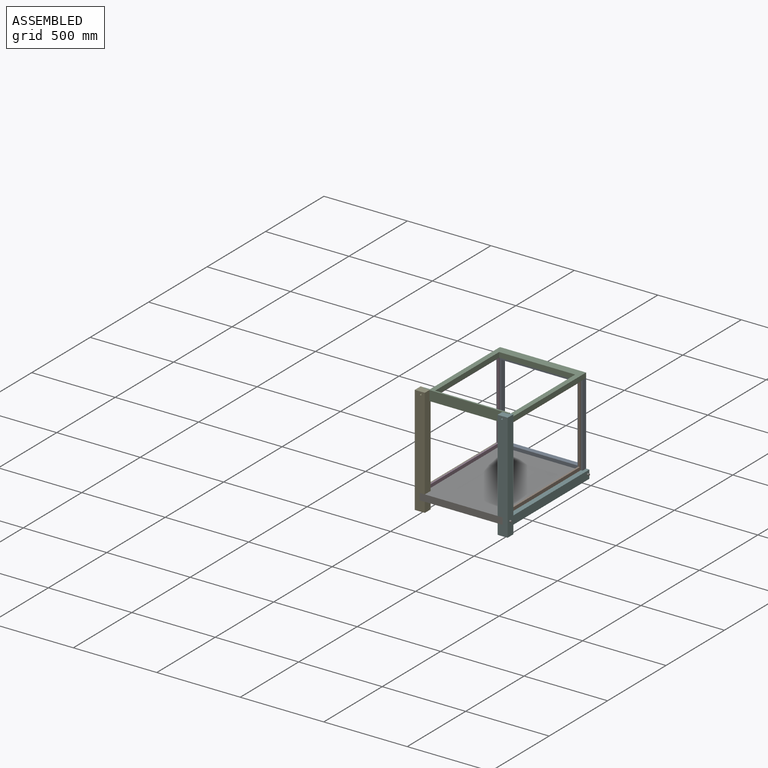
[diagram: assembled view]
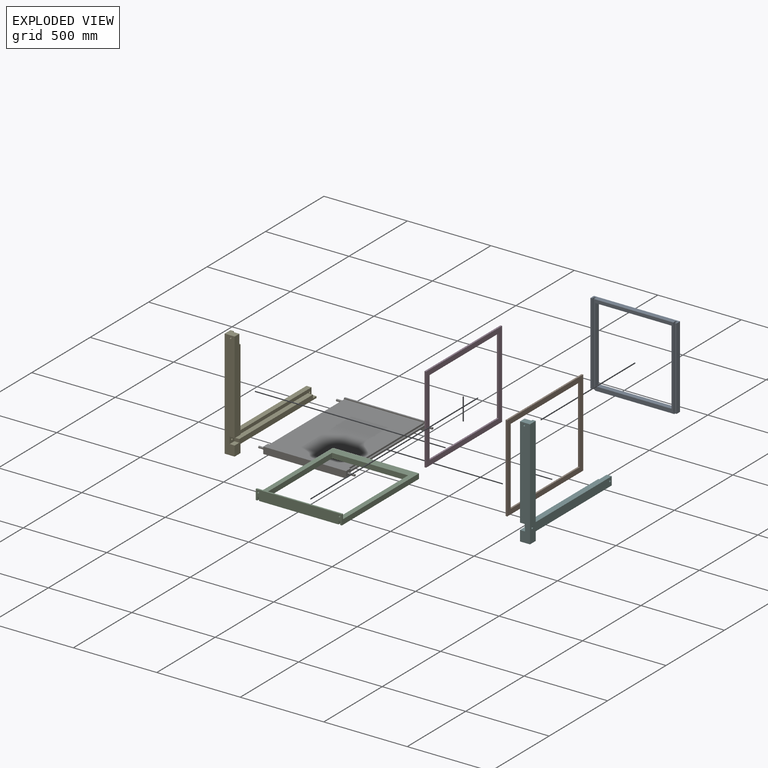
[diagram: exploded view]
GUIDED TOUR — MATED ASSEMBLY (Onshape document 700acc15693d6eb4fbc7c0b1, AutoMate assembly 700acc15693d6eb4fbc7c0b1_38a1f6109dc2199ace2852b7_a653098e9e6f9303885be25c_default)

This assembly has 7 components, labeled P0..P6 below (a component is one placed occurrence of a part; the same part can appear more than once), held together by 15 mates. A mate is a constraint between two components; its type names the relative motion it leaves free:
  CYLINDRICAL — leaves both rotation about and translation along the listed axis free,
  PLANAR — leaves sliding in the plane through the listed point (normal = the listed direction) and rotation about that normal free.
Axis/direction vectors are unit vectors and 'through' points are millimeter coordinates, both in the assembly's world frame.

MATES
  1. PLANAR "Planar 1": P4 <-> P6, direction (1.000, 0.000, 0.000) through (-492.27, 11.39, -184.45) mm
  2. PLANAR "Planar 6": P3 <-> P4, direction (-1.000, 0.000, 0.000) through (-492.27, 399.00, -215.41) mm
  3. PLANAR "Planar 11": P0 <-> P1, direction (-1.000, 0.000, 0.000) through (3.73, 419.00, 9.59) mm
  4. PLANAR "Planar 13": P2 <-> P0, direction (0.000, 0.000, -1.000) through (-244.27, 162.24, 254.59) mm
  5. PLANAR "Planar 2": P5 <-> P6, direction (-1.000, 0.000, 0.000) through (3.73, 11.39, -184.45) mm
  6. CYLINDRICAL "Cylindrical 2": P5 <-> P6, axis (1.000, 0.000, 0.000) through (33.73, -241.00, -255.41) mm
  7. PLANAR "Planar 4": P1 <-> P6, direction (0.000, 0.000, -1.000) through (-1.27, 104.00, -245.41) mm
  8. PLANAR "Planar 7": P6 <-> P3, direction (0.000, 0.000, 1.000) through (-482.27, 99.00, -245.41) mm
  9. CYLINDRICAL "Cylindrical 1": P6 <-> P4, axis (-1.000, 0.000, 0.000) through (-532.27, -241.00, -255.41) mm
  10. PLANAR "Planar 5": P1 <-> P5, direction (1.000, 0.000, 0.000) through (3.73, 104.00, 14.59) mm
  11. PLANAR "Planar 8": P3 <-> P4, direction (0.000, -1.000, 0.000) through (-487.27, -221.00, 14.59) mm
  12. PLANAR "Planar 10": P0 <-> P3, direction (0.000, -1.000, 0.000) through (-487.27, 429.00, 9.59) mm
  13. PLANAR "Planar 9": P0 <-> P6, direction (0.000, 0.000, -1.000) through (-244.27, 424.00, -245.41) mm
  14. PLANAR "Planar 3": P5 <-> P1, direction (0.000, 1.000, 0.000) through (-2.90, -221.00, 95.28) mm
  15. PLANAR "Planar 12": P2 <-> P5, direction (0.000, -1.000, 0.000) through (-244.27, -221.00, 254.59) mm

ASSEMBLY ORDER
  1. P1 — the base component [order verified]
  2. P3 [order verified]
  3. P6 [order verified]
  4. P2 [order verified]
  5. P4 [order verified]
  6. P5 [order verified]
  7. P0 [order verified]
(P0 verified with a relaxed clearance tolerance: the source model stores slight part interference there.)
Order-tag legend:
  [order verified] — this step's position reverses a verified removal order: the component was checked to insert without passing through the ones already placed.

Of the 7 components, 6 carry the full construction recipe — the FeatureScript program that regenerates the part's solid from scratch; the rest are supplied as boundary geometry only.
Each toured component is shown spotlighted twice — in the assembled view, then in the exploded view, where a leader line traces a displaced component back to its assembled socket (saturated green if recipe-attached, orange if geometry-only; every other component desaturated gray) — followed by its recipe or geometry summary and the mates that hold it.
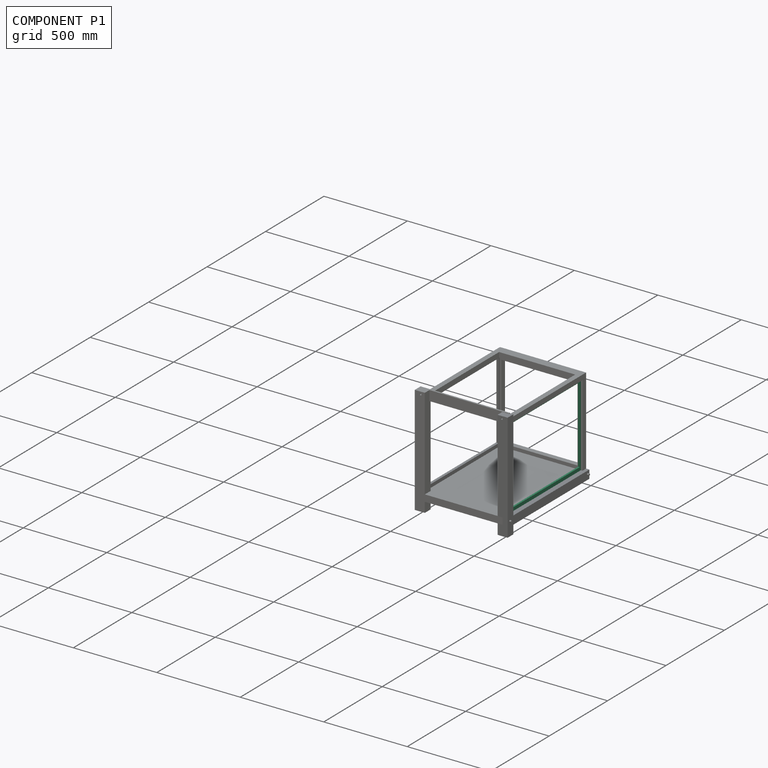
[diagram: component P1 — assembled]
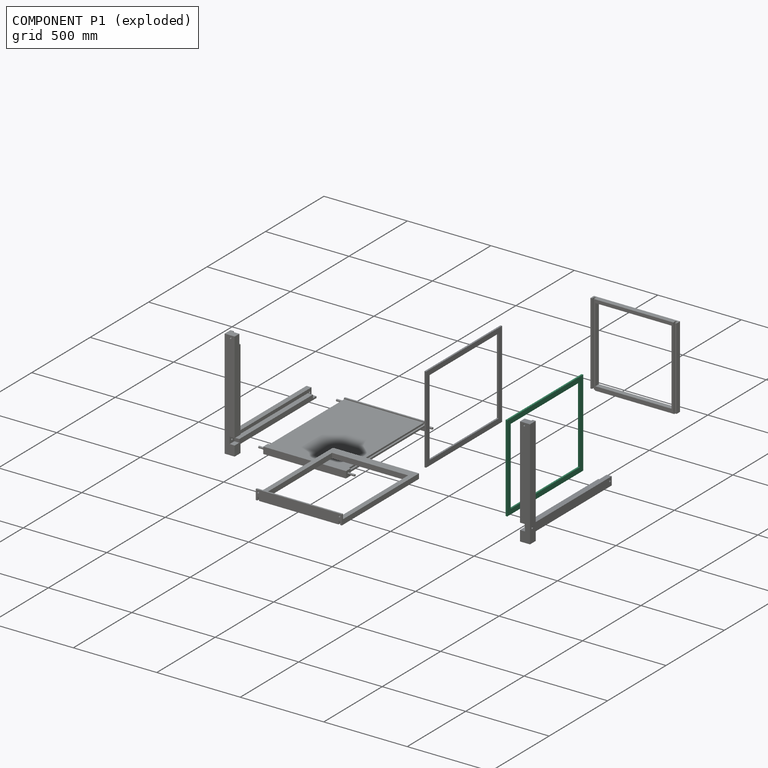
[diagram: component P1 — exploded]
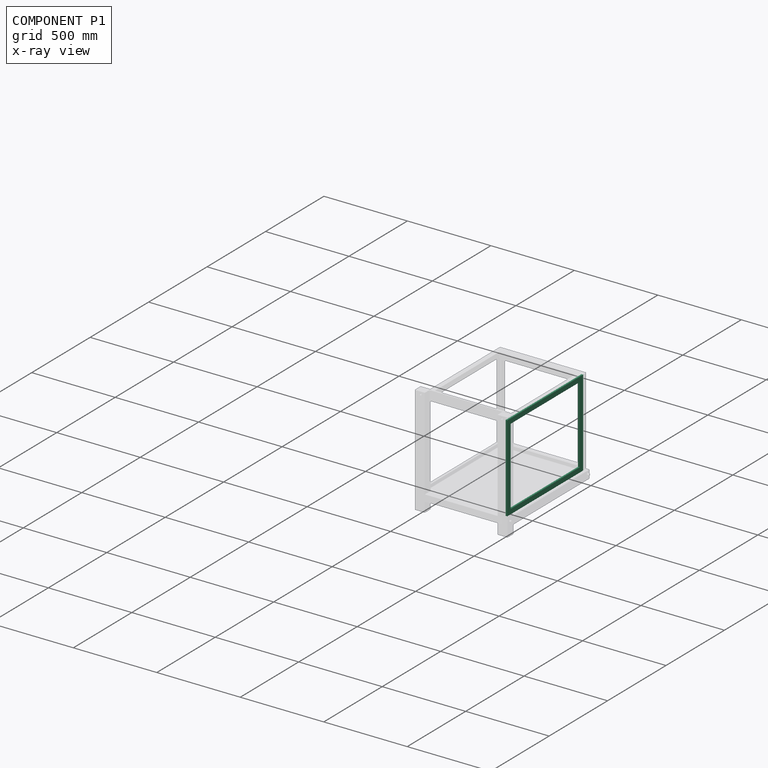
[diagram: component P1 — x-ray view]
COMPONENT P1 — recipe-attached (CADFS 00972116, mesh-verified: the recipe's output STEP matches this component's geometry to below the mesh-comparison resolution (tessellation chordal tolerance ~1.25 mm)).
Held by: PLANAR mate "Planar 11" to P0; PLANAR mate "Planar 4" to P6; PLANAR mate "Planar 5" to P5; PLANAR mate "Planar 3" to P5.
Construction recipe (FeatureScript — the CAD program that rebuilds this solid; sketch coordinates are in the units given by the * unit suffixes, e.g. mm):

FeatureScript 1511;
import(path : "onshape/std/geometry.fs", version : "1511.0");
import(path : "onshape/std/common.fs", version : "1511.0");
const mm = millimeter;
const VERTEX = EntityType.VERTEX;
const EDGE = EntityType.EDGE;
const FACE = EntityType.FACE;
const BODY = EntityType.BODY;
function v(x, y){return vector(x, y);}
function OD(order){return orderDisambiguation(order);}
function OSD(set){return originalSetDisambiguation(set);}
function TD(topology){return topologyDisambiguation(topology);}
function TDD(query){return trueDependencyDisambiguation(query);}
function sQuery(a, b, c) {return sketchEntityQuery(a, b, c);}

annotation { "Feature Type Name" : "Feature", "Feature Type Description" : "" }
export const myFeature = defineFeature(function(context is Context, id is Id, definition is map)
    precondition{}
    {
        {
            var Q0;
            Q0=qCreatedBy(makeId("Right.planeOp"),FACE);
            var sketch = newSketch(context, id + "F0", { "sketchPlane" : qUnion([Q0])});
            skLineSegment(sketch, "E0.bottom", {"start": v(-429.77, 280.8) * mm, "end": v(220.23, 280.8) * mm});
            skLineSegment(sketch, "E0.top", {"start": v(-429.77, -239.2) * mm, "end": v(220.23, -239.2) * mm});
            skLineSegment(sketch, "E0.left", {"start": v(-429.77, 280.8) * mm, "end": v(-429.77, -239.2) * mm});
            skLineSegment(sketch, "E0.right", {"start": v(220.23, 280.8) * mm, "end": v(220.23, -239.2) * mm});
            skLineSegment(sketch, "E1.bottom", {"start": v(-399.77, -209.2) * mm, "end": v(190.23, -209.2) * mm});
            skLineSegment(sketch, "E1.top", {"start": v(-399.77, 250.8) * mm, "end": v(190.23, 250.8) * mm});
            skLineSegment(sketch, "E1.left", {"start": v(-399.77, -209.2) * mm, "end": v(-399.77, 250.8) * mm});
            skLineSegment(sketch, "E1.right", {"start": v(190.23, -209.2) * mm, "end": v(190.23, 250.8) * mm});
            skSolve(sketch);
        }
        {
            var Q0;
            Q0=makeQuery(id+"F0.imprint","IMPRINT",FACE,{"disambiguationData":[TD([[makeQuery(id+"F0.imprint","IMPRINT",EDGE,{"derivedFrom":sQuery(id+"F0.wireOp",EDGE,"E0.bottom")}),-1.0]])]});
            extrude(context, id + "F1", {"entities" : qUnion([Q0]), "depth" : 10 * mm, "offsetDistance" : 25 * mm});
        }
    });
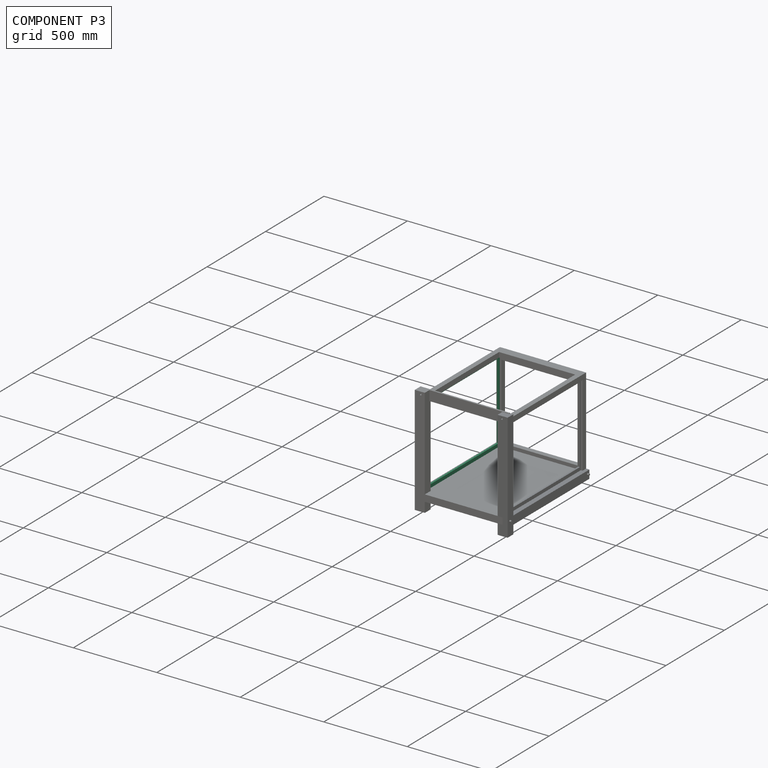
[diagram: component P3 — assembled]
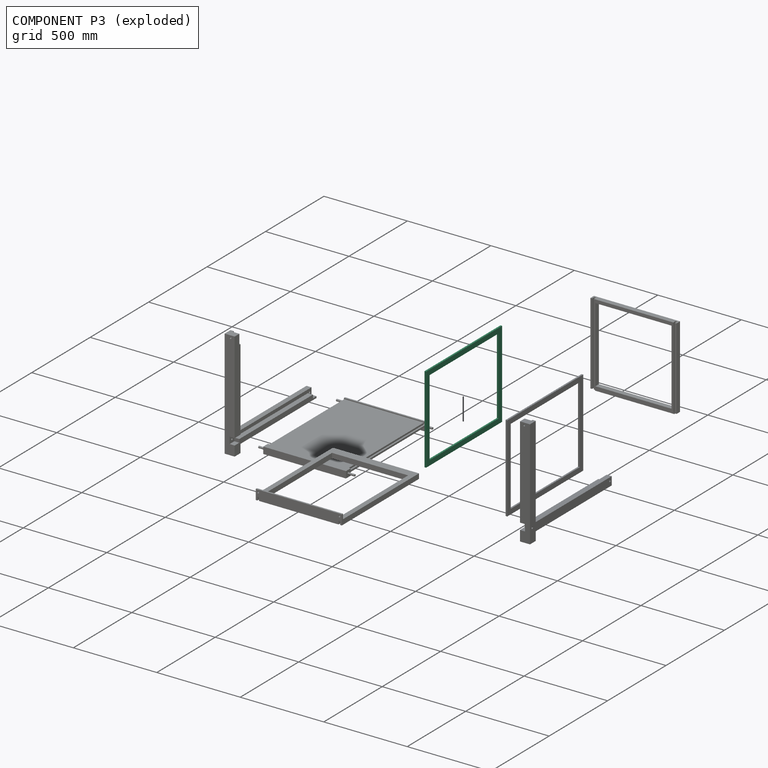
[diagram: component P3 — exploded]
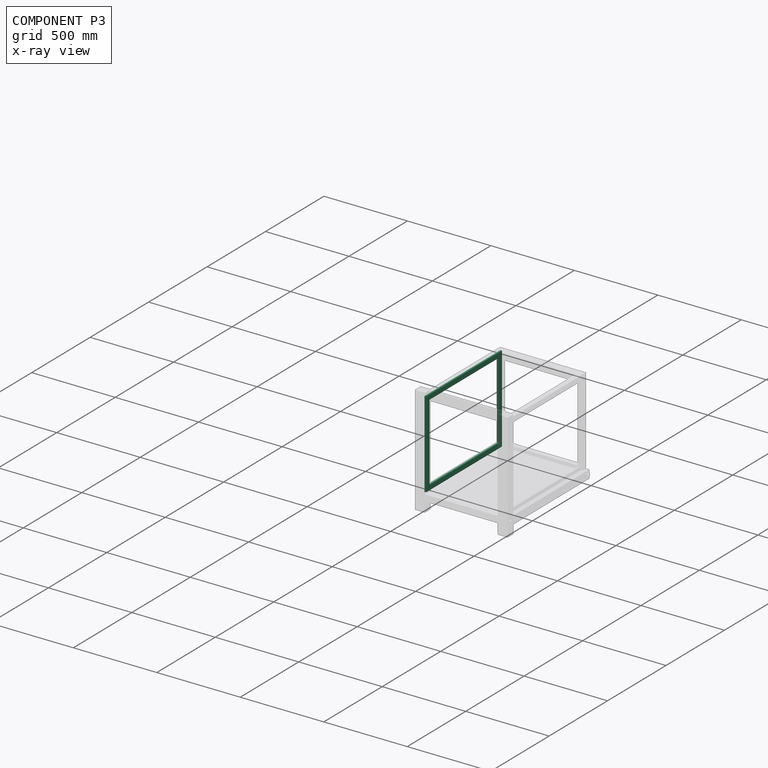
[diagram: component P3 — x-ray view]
COMPONENT P3 — same part as P1 (CADFS 00972116); its construction recipe is shown at P1.
Held by: PLANAR mate "Planar 6" to P4; PLANAR mate "Planar 7" to P6; PLANAR mate "Planar 8" to P4; PLANAR mate "Planar 10" to P0.
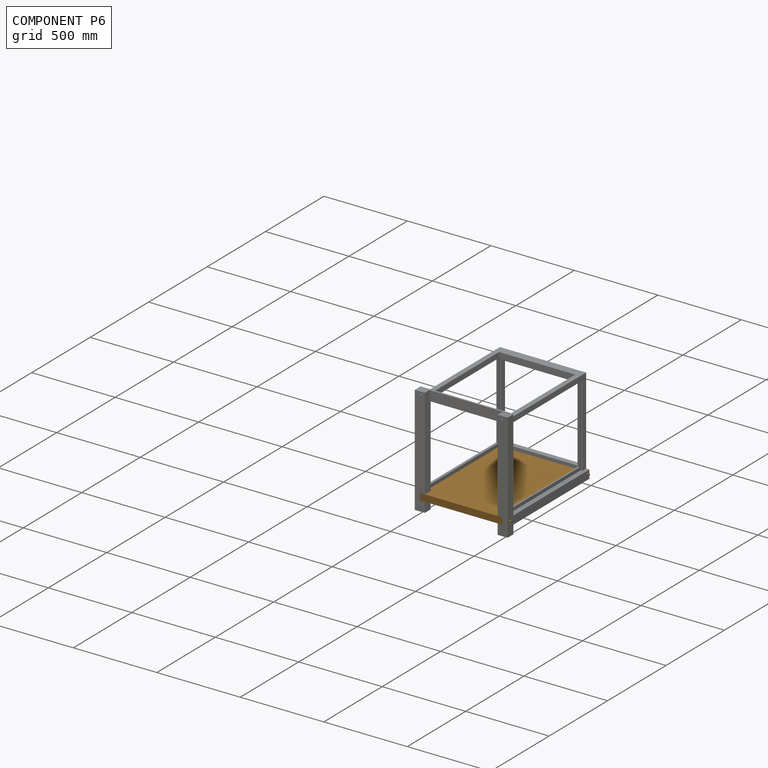
[diagram: component P6 — assembled]
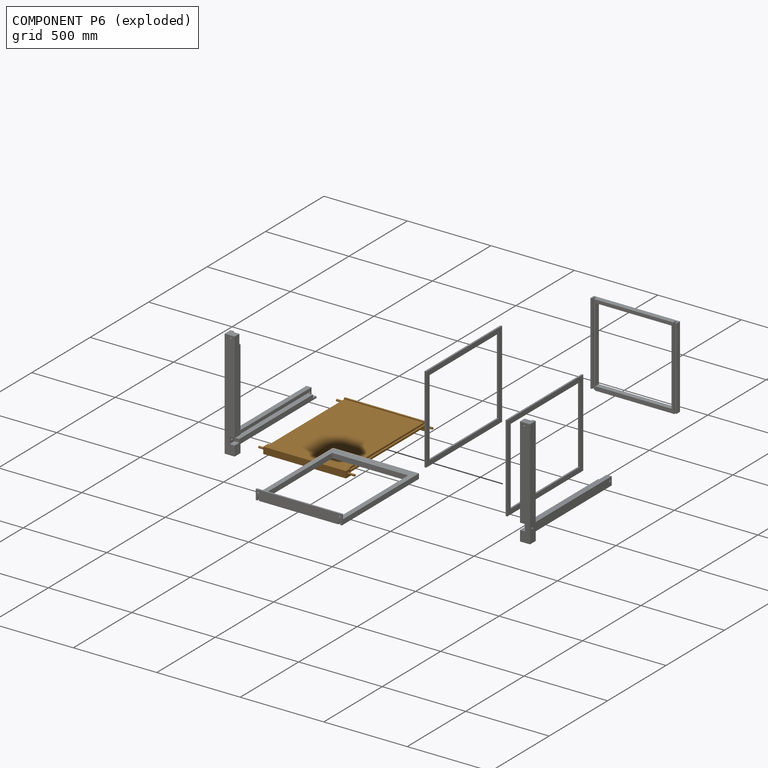
[diagram: component P6 — exploded]
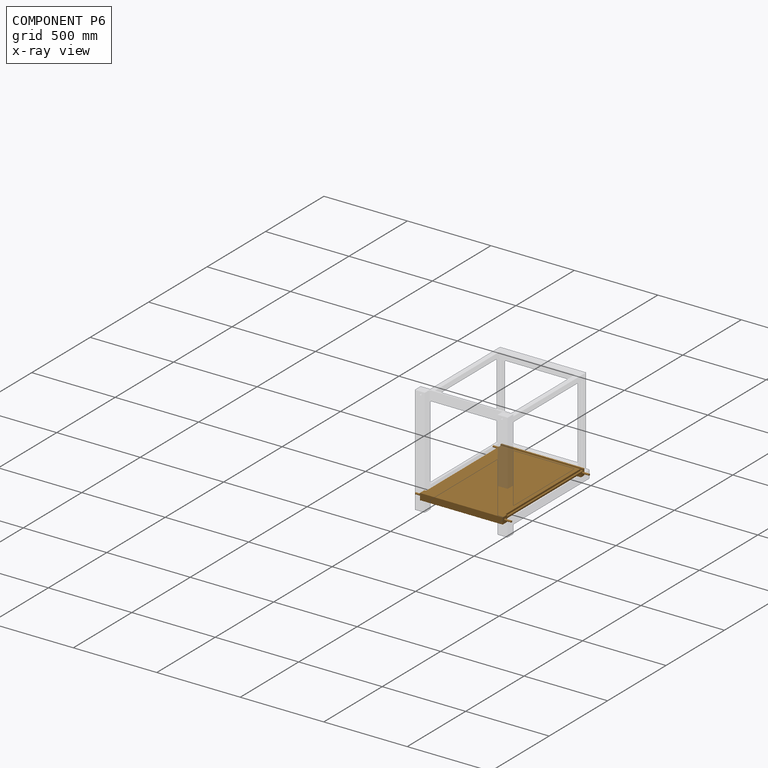
[diagram: component P6 — x-ray view]
COMPONENT P6 — geometry summary (no construction recipe available for this part):
  bounding box: 700.0 x 576.0 x 40.0 mm
  B-rep topology: 1 solid, 26 faces, 124 edges
  volume: 7478896 mm^3 (46% of its bounding box)
  symmetry: mirror-symmetric across its y mid-plane
Held by: PLANAR mate "Planar 1" to P4; PLANAR mate "Planar 2" to P5; CYLINDRICAL mate "Cylindrical 2" to P5; PLANAR mate "Planar 4" to P1; PLANAR mate "Planar 7" to P3; CYLINDRICAL mate "Cylindrical 1" to P4; PLANAR mate "Planar 9" to P0.
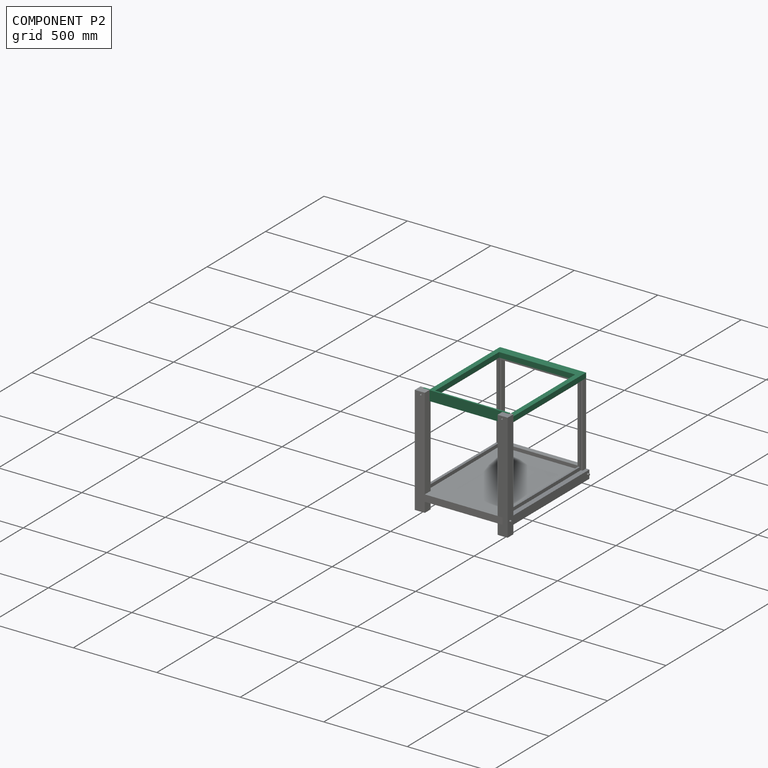
[diagram: component P2 — assembled]
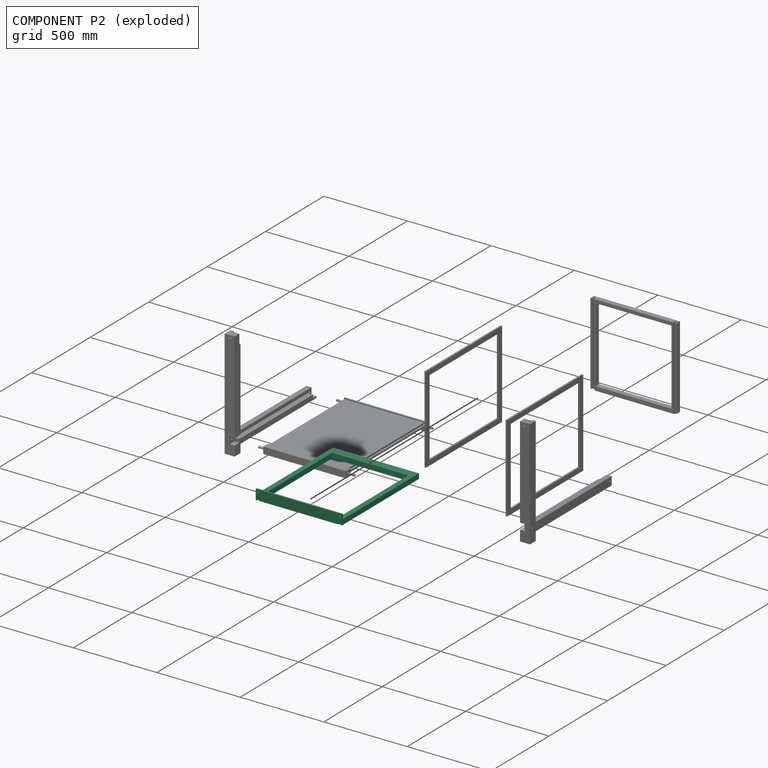
[diagram: component P2 — exploded]
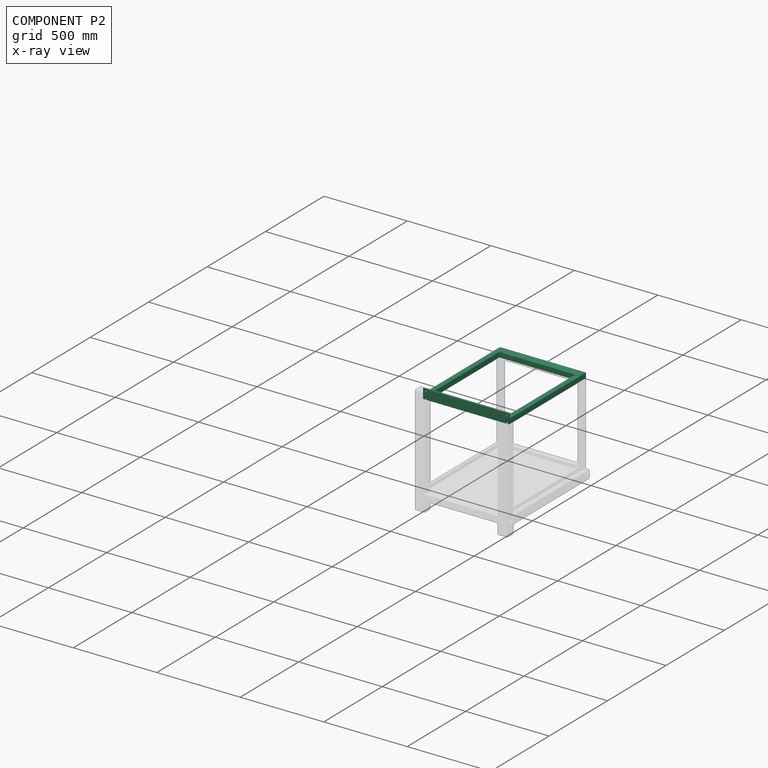
[diagram: component P2 — x-ray view]
COMPONENT P2 — recipe-attached (CADFS 00972117, mesh-verified: the recipe's output STEP matches this component's geometry to below the mesh-comparison resolution (tessellation chordal tolerance ~1.26 mm)).
Held by: PLANAR mate "Planar 13" to P0; PLANAR mate "Planar 12" to P5.
Construction recipe (FeatureScript — the CAD program that rebuilds this solid; sketch coordinates are in the units given by the * unit suffixes, e.g. mm):

FeatureScript 1511;
import(path : "onshape/std/geometry.fs", version : "1511.0");
import(path : "onshape/std/common.fs", version : "1511.0");
const mm = millimeter;
const VERTEX = EntityType.VERTEX;
const EDGE = EntityType.EDGE;
const FACE = EntityType.FACE;
const BODY = EntityType.BODY;
function v(x, y){return vector(x, y);}
function OD(order){return orderDisambiguation(order);}
function OSD(set){return originalSetDisambiguation(set);}
function TD(topology){return topologyDisambiguation(topology);}
function TDD(query){return trueDependencyDisambiguation(query);}
function sQuery(a, b, c) {return sketchEntityQuery(a, b, c);}

annotation { "Feature Type Name" : "Feature", "Feature Type Description" : "" }
export const myFeature = defineFeature(function(context is Context, id is Id, definition is map)
    precondition{}
    {
        {
            var Q0;
            Q0=qCreatedBy(makeId("Top.planeOp"),FACE);
            var sketch = newSketch(context, id + "F0", { "sketchPlane" : qUnion([Q0])});
            skLineSegment(sketch, "E0.bottom", {"start": v(-227.04, 462.19) * mm, "end": v(288.96, 462.19) * mm});
            skLineSegment(sketch, "E0.top", {"start": v(-227.04, -197.81) * mm, "end": v(288.96, -197.81) * mm});
            skLineSegment(sketch, "E0.left", {"start": v(-227.04, 462.19) * mm, "end": v(-227.04, -197.81) * mm});
            skLineSegment(sketch, "E0.right", {"start": v(288.96, 462.19) * mm, "end": v(288.96, -197.81) * mm});
            skLineSegment(sketch, "E1.bottom", {"start": v(-197.04, 412.19) * mm, "end": v(258.96, 412.19) * mm});
            skLineSegment(sketch, "E1.top", {"start": v(-197.04, -167.81) * mm, "end": v(258.96, -167.81) * mm});
            skLineSegment(sketch, "E1.left", {"start": v(-197.04, 412.19) * mm, "end": v(-197.04, -167.81) * mm});
            skLineSegment(sketch, "E1.right", {"start": v(258.96, 412.19) * mm, "end": v(258.96, -167.81) * mm});
            skSolve(sketch);
        }
        {
            var Q0;
            Q0=makeQuery(id+"F0.imprint","IMPRINT",FACE,{"disambiguationData":[TD([[makeQuery(id+"F0.imprint","IMPRINT",EDGE,{"derivedFrom":sQuery(id+"F0.wireOp",EDGE,"E0.bottom")}),-1.0]])]});
            extrude(context, id + "F1", {"entities" : qUnion([Q0]), "depth" : 20 * mm, "offsetDistance" : 25 * mm});
        }
        {
            var Q0;
            Q0=makeQuery(id+"F1.opExtrude","CAP_FACE",FACE,{"disambiguationData":[OSD([sQuery(id+"F0.wireOp",EDGE,"E0.bottom"),sQuery(id+"F0.wireOp",EDGE,"E0.top"),sQuery(id+"F0.wireOp",EDGE,"E0.left"),sQuery(id+"F0.wireOp",EDGE,"E0.right"),sQuery(id+"F0.wireOp",EDGE,"E1.bottom"),sQuery(id+"F0.wireOp",EDGE,"E1.top"),sQuery(id+"F0.wireOp",EDGE,"E1.left"),sQuery(id+"F0.wireOp",EDGE,"E1.right")])],"isStart":false});
            var sketch = newSketch(context, id + "F2", { "sketchPlane" : qUnion([Q0])});
            skLineSegment(sketch, "E2.bottom", {"start": v(-217.04, -197.81) * mm, "end": v(-207.04, -197.81) * mm});
            skLineSegment(sketch, "E2.top", {"start": v(-217.04, 462.19) * mm, "end": v(-207.04, 462.19) * mm});
            skLineSegment(sketch, "E2.left", {"start": v(-217.04, -197.81) * mm, "end": v(-217.04, 462.19) * mm});
            skLineSegment(sketch, "E2.right", {"start": v(-207.04, -197.81) * mm, "end": v(-207.04, 462.19) * mm});
            skLineSegment(sketch, "E3.bottom", {"start": v(268.96, 462.19) * mm, "end": v(278.96, 462.19) * mm});
            skLineSegment(sketch, "E3.top", {"start": v(268.96, -197.81) * mm, "end": v(278.96, -197.81) * mm});
            skLineSegment(sketch, "E3.left", {"start": v(268.96, 462.19) * mm, "end": v(268.96, -197.81) * mm});
            skLineSegment(sketch, "E3.right", {"start": v(278.96, 462.19) * mm, "end": v(278.96, -197.81) * mm});
            skSolve(sketch);
        }
        {
            var Q0;
            Q0 = qSketchRegion(id + "F2", true);
            extrude(context, id + "F3", {"entities" : qUnion([Q0]), "operationType" : NewBodyOperationType.REMOVE, "oppositeDirection" : true, "depth" : 10 * mm, "offsetDistance" : 25 * mm});
        }
        {
            var Q0;
            {var subQ0=sQuery(id+"F0.wireOp",EDGE,"E0.bottom");var subQ1=sQuery(id+"F0.wireOp",EDGE,"E0.right");var subQ2=sQuery(id+"F0.wireOp",EDGE,"E0.top");Q0=makeQuery(id+"F3.boolean.opBoolean","SPLIT",FACE,{"disambiguationData":[TD([makeQuery(id+"F1.opExtrude","SWEPT_FACE",FACE,{"disambiguationData":[OSD([subQ1])]})])],"derivedFrom":makeQuery(id+"F1.opExtrude","CAP_FACE",FACE,{"disambiguationData":[OSD([subQ0,subQ2,sQuery(id+"F0.wireOp",EDGE,"E0.left"),subQ1,sQuery(id+"F0.wireOp",EDGE,"E1.bottom"),sQuery(id+"F0.wireOp",EDGE,"E1.top"),sQuery(id+"F0.wireOp",EDGE,"E1.left"),sQuery(id+"F0.wireOp",EDGE,"E1.right")])],"isStart":false})});}
            var Q1;
            {var subQ0=sQuery(id+"F0.wireOp",EDGE,"E0.bottom");var subQ1=sQuery(id+"F0.wireOp",EDGE,"E0.top");var subQ2=sQuery(id+"F0.wireOp",EDGE,"E0.left");Q1=makeQuery(id+"F3.boolean.opBoolean","SPLIT",FACE,{"disambiguationData":[TD([makeQuery(id+"F1.opExtrude","SWEPT_FACE",FACE,{"disambiguationData":[OSD([subQ2])]})])],"derivedFrom":makeQuery(id+"F1.opExtrude","CAP_FACE",FACE,{"disambiguationData":[OSD([subQ0,subQ1,subQ2,sQuery(id+"F0.wireOp",EDGE,"E0.right"),sQuery(id+"F0.wireOp",EDGE,"E1.bottom"),sQuery(id+"F0.wireOp",EDGE,"E1.top"),sQuery(id+"F0.wireOp",EDGE,"E1.left"),sQuery(id+"F0.wireOp",EDGE,"E1.right")])],"isStart":false})});}
            var Q2;
            {var subQ0=sQuery(id+"F0.wireOp",EDGE,"E1.top");var subQ1=sQuery(id+"F0.wireOp",EDGE,"E1.bottom");var subQ2=sQuery(id+"F0.wireOp",EDGE,"E0.top");var subQ3=sQuery(id+"F0.wireOp",EDGE,"E0.bottom");var subQ4=sQuery(id+"F0.wireOp",EDGE,"E1.left");var subQ5=sQuery(id+"F0.wireOp",EDGE,"E1.right");Q2=makeQuery(id+"F3.boolean.opBoolean","SPLIT",FACE,{"disambiguationData":[TD([makeQuery(id+"F1.opExtrude","SWEPT_FACE",FACE,{"disambiguationData":[OSD([subQ1])]})])],"derivedFrom":makeQuery(id+"F1.opExtrude","CAP_FACE",FACE,{"disambiguationData":[OSD([subQ3,subQ2,sQuery(id+"F0.wireOp",EDGE,"E0.left"),sQuery(id+"F0.wireOp",EDGE,"E0.right"),subQ1,subQ0,subQ4,subQ5])],"isStart":false})});}
            extrude(context, id + "F4", {"entities" : qUnion([Q0, Q1, Q2]), "operationType" : NewBodyOperationType.ADD, "depth" : 10 * mm, "offsetDistance" : 25 * mm});
        }
        {
            var Q0;
            Q0=makeQuery(id+"F1.opExtrude","CAP_FACE",FACE,{"disambiguationData":[OSD([sQuery(id+"F0.wireOp",EDGE,"E0.bottom"),sQuery(id+"F0.wireOp",EDGE,"E0.top"),sQuery(id+"F0.wireOp",EDGE,"E0.left"),sQuery(id+"F0.wireOp",EDGE,"E0.right"),sQuery(id+"F0.wireOp",EDGE,"E1.bottom"),sQuery(id+"F0.wireOp",EDGE,"E1.top"),sQuery(id+"F0.wireOp",EDGE,"E1.left"),sQuery(id+"F0.wireOp",EDGE,"E1.right")])],"isStart":true});
            var sketch = newSketch(context, id + "F5", { "sketchPlane" : qUnion([Q0])});
            skLineSegment(sketch, "E4.bottom", {"start": v(-227.04, 197.81) * mm, "end": v(-197.04, 197.81) * mm});
            skLineSegment(sketch, "E4.top", {"start": v(-227.04, 187.81) * mm, "end": v(-197.04, 187.81) * mm});
            skLineSegment(sketch, "E4.left", {"start": v(-227.04, 197.81) * mm, "end": v(-227.04, 187.81) * mm});
            skLineSegment(sketch, "E4.right", {"start": v(-197.04, 197.81) * mm, "end": v(-197.04, 187.81) * mm});
            skLineSegment(sketch, "E5.bottom", {"start": v(288.96, 197.81) * mm, "end": v(258.96, 197.81) * mm});
            skLineSegment(sketch, "E5.top", {"start": v(288.96, 187.81) * mm, "end": v(258.96, 187.81) * mm});
            skLineSegment(sketch, "E5.left", {"start": v(288.96, 197.81) * mm, "end": v(288.96, 187.81) * mm});
            skLineSegment(sketch, "E5.right", {"start": v(258.96, 197.81) * mm, "end": v(258.96, 187.81) * mm});
            skSolve(sketch);
        }
        {
            var Q0;
            Q0=makeQuery(id+"F5.imprint","IMPRINT",FACE,{"disambiguationData":[TD([[makeQuery(id+"F5.imprint","IMPRINT",EDGE,{"derivedFrom":sQuery(id+"F5.wireOp",EDGE,"E5.bottom")}),-1.0]])]});
            var Q1;
            Q1=makeQuery(id+"F5.imprint","IMPRINT",FACE,{"disambiguationData":[TD([[makeQuery(id+"F5.imprint","IMPRINT",EDGE,{"derivedFrom":sQuery(id+"F5.wireOp",EDGE,"E4.bottom")}),-1.0]])]});
            extrude(context, id + "F6", {"entities" : qUnion([Q0, Q1]), "operationType" : NewBodyOperationType.ADD, "depth" : 30 * mm, "offsetDistance" : 25 * mm});
        }
        {
            var Q0;
            Q0=makeQuery(id+"F6.opExtrude","SWEPT_FACE",FACE,{"disambiguationData":[OSD([sQuery(id+"F5.wireOp",EDGE,"E4.top")])]});
            var sketch = newSketch(context, id + "F7", { "sketchPlane" : qUnion([Q0])});
            skPoint(sketch, "E6", {"position": v(212.04, -15) * mm});
            skPoint(sketch, "E6.positionSnap0", {"position": v(197.04, -15) * mm});
            skPoint(sketch, "E6.positionSnap1", {"position": v(212.04, -30) * mm});
            skPoint(sketch, "E7", {"position": v(-273.96, -15) * mm});
            skSolve(sketch);
        }
        {
            var Q0;
            Q0=sQuery(id+"F7.wireOp",VERTEX,"E6");
            var Q1;
            Q1=sQuery(id+"F7.wireOp",VERTEX,"E7");
            var Q2;
            Q2=makeQuery(id+"F1.opExtrude","SWEPT_BODY",BODY,{"disambiguationData":[OSD([sQuery(id+"F0.wireOp",EDGE,"E0.bottom"),sQuery(id+"F0.wireOp",EDGE,"E0.top"),sQuery(id+"F0.wireOp",EDGE,"E0.left"),sQuery(id+"F0.wireOp",EDGE,"E0.right"),sQuery(id+"F0.wireOp",EDGE,"E1.bottom"),sQuery(id+"F0.wireOp",EDGE,"E1.top"),sQuery(id+"F0.wireOp",EDGE,"E1.left"),sQuery(id+"F0.wireOp",EDGE,"E1.right")])]});
            hole(context, id + "F8", {"style" : HoleStyle.SIMPLE, "endStyle" : HoleEndStyle.THROUGH, "holeDiameter" : 10 * mm, "majorDiameter" : 5 * mm, "isTappedThrough" : true, "tappedDepth" : 12 * mm, "tapClearance" : 3, "locations" : qUnion([Q0, Q1]), "scope" : qUnion([Q2])});
        }
        {
            var Q0;
            Q0=makeQuery(id+"F6.opExtrude","SWEPT_FACE",FACE,{"disambiguationData":[OSD([sQuery(id+"F5.wireOp",EDGE,"E5.right")])]});
            extrude(context, id + "F9", {"entities" : qUnion([Q0]), "operationType" : NewBodyOperationType.ADD, "endBound" : BoundingType.UP_TO_NEXT, "depth" : 25 * mm, "offsetDistance" : 25 * mm});
        }
    });
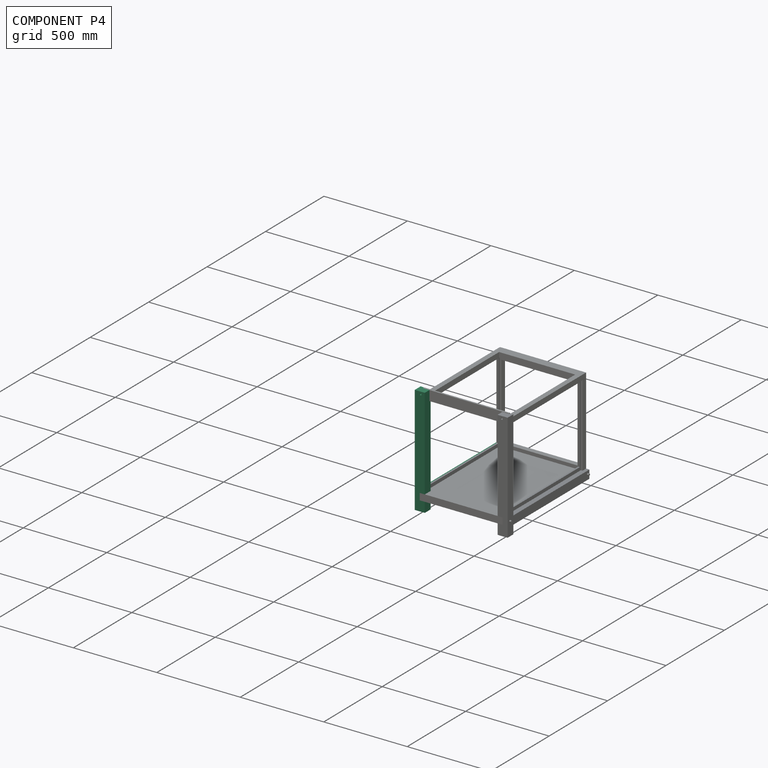
[diagram: component P4 — assembled]
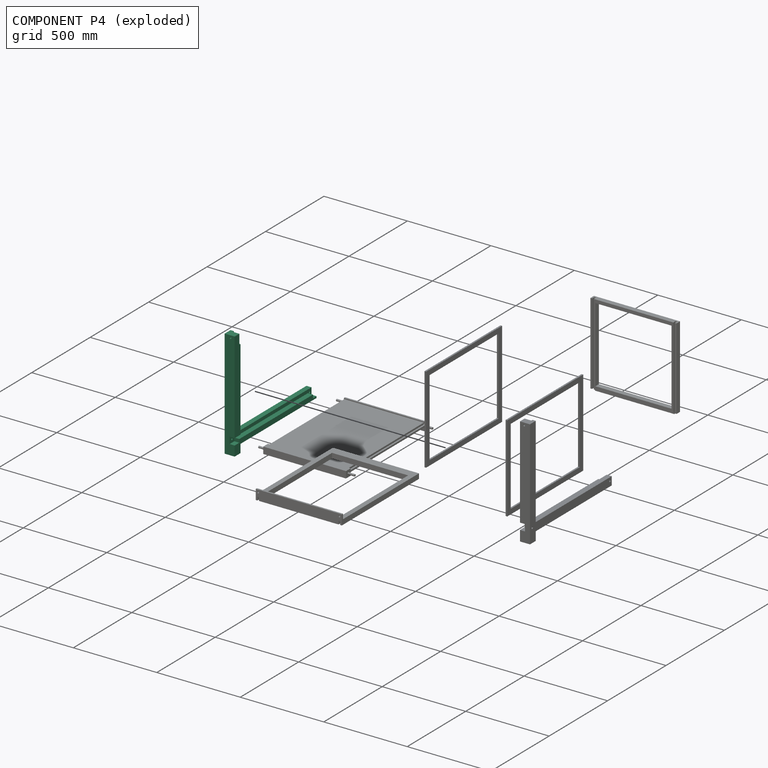
[diagram: component P4 — exploded]
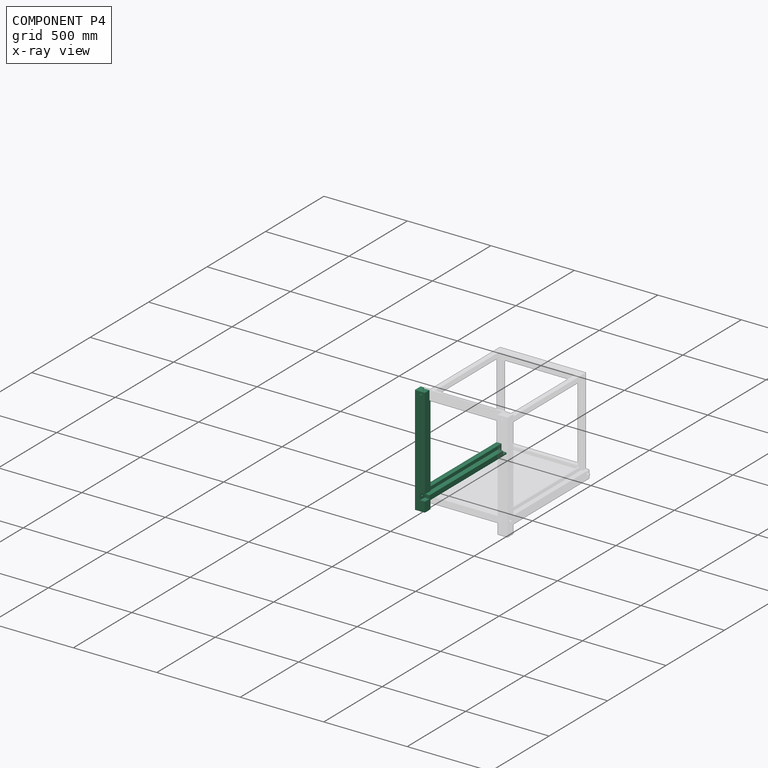
[diagram: component P4 — x-ray view]
COMPONENT P4 — recipe-attached (CADFS 00972112, mesh-verified: the recipe's output STEP matches this component's geometry to below the mesh-comparison resolution (tessellation chordal tolerance ~1.44 mm)).
Held by: PLANAR mate "Planar 1" to P6; PLANAR mate "Planar 6" to P3; CYLINDRICAL mate "Cylindrical 1" to P6; PLANAR mate "Planar 8" to P3.
Construction recipe (FeatureScript — the CAD program that rebuilds this solid; sketch coordinates are in the units given by the * unit suffixes, e.g. mm):

FeatureScript 1511;
import(path : "onshape/std/geometry.fs", version : "1511.0");
import(path : "onshape/std/common.fs", version : "1511.0");
const mm = millimeter;
const VERTEX = EntityType.VERTEX;
const EDGE = EntityType.EDGE;
const FACE = EntityType.FACE;
const BODY = EntityType.BODY;
function v(x, y){return vector(x, y);}
function OD(order){return orderDisambiguation(order);}
function OSD(set){return originalSetDisambiguation(set);}
function TD(topology){return topologyDisambiguation(topology);}
function TDD(query){return trueDependencyDisambiguation(query);}
function sQuery(a, b, c) {return sketchEntityQuery(a, b, c);}

annotation { "Feature Type Name" : "Feature", "Feature Type Description" : "" }
export const myFeature = defineFeature(function(context is Context, id is Id, definition is map)
    precondition{}
    {
        {
            var Q0;
            Q0=qCreatedBy(makeId("Right.planeOp"),FACE);
            var sketch = newSketch(context, id + "F0", { "sketchPlane" : qUnion([Q0])});
            skLineSegment(sketch, "E0.bottom", {"start": v(-299.4, -86.85) * mm, "end": v(350.6, -86.85) * mm});
            skLineSegment(sketch, "E0.top", {"start": v(-299.4, -36.85) * mm, "end": v(350.6, -36.85) * mm});
            skLineSegment(sketch, "E0.left", {"start": v(-349.4, -86.85) * mm, "end": v(-349.4, -36.85) * mm});
            skLineSegment(sketch, "E0.right", {"start": v(350.6, -86.85) * mm, "end": v(350.6, -36.85) * mm});
            skLineSegment(sketch, "E1", {"start": v(0.6, 119.74) * mm, "end": v(0.6, -301.99) * mm, "construction": true});
            skLineSegment(sketch, "E2.top", {"start": v(-349.4, 513.15) * mm, "end": v(-299.4, 513.15) * mm});
            skLineSegment(sketch, "E2.left", {"start": v(-349.4, -36.85) * mm, "end": v(-349.4, 513.15) * mm});
            skLineSegment(sketch, "E2.right", {"start": v(-299.4, -36.85) * mm, "end": v(-299.4, 513.15) * mm});
            skLineSegment(sketch, "E3.top", {"start": v(-349.4, -136.85) * mm, "end": v(-299.4, -136.85) * mm});
            skLineSegment(sketch, "E3.left", {"start": v(-349.4, -86.85) * mm, "end": v(-349.4, -136.85) * mm});
            skLineSegment(sketch, "E3.right", {"start": v(-299.4, -86.85) * mm, "end": v(-299.4, -136.85) * mm});
            skSolve(sketch);
        }
        {
            var Q0;
            Q0 = qSketchRegion(id + "F0", true);
            extrude(context, id + "F1", {"entities" : qUnion([Q0]), "depth" : 60 * mm, "offsetDistance" : 25 * mm});
        }
        {
            var Q0;
            Q0=makeQuery(id+"F1.opExtrude","CAP_FACE",FACE,{"disambiguationData":[OSD([sQuery(id+"F0.wireOp",EDGE,"E0.bottom"),sQuery(id+"F0.wireOp",EDGE,"E0.top"),sQuery(id+"F0.wireOp",EDGE,"E0.left"),sQuery(id+"F0.wireOp",EDGE,"E0.right"),sQuery(id+"F0.wireOp",EDGE,"E2.top"),sQuery(id+"F0.wireOp",EDGE,"E2.left"),sQuery(id+"F0.wireOp",EDGE,"E2.right"),sQuery(id+"F0.wireOp",EDGE,"E3.top"),sQuery(id+"F0.wireOp",EDGE,"E3.left"),sQuery(id+"F0.wireOp",EDGE,"E3.right")])],"isStart":false});
            var sketch = newSketch(context, id + "F2", { "sketchPlane" : qUnion([Q0])});
            skPoint(sketch, "E4.firstSnap0", {"position": v(-324.4, -136.85) * mm});
            skLineSegment(sketch, "E5.bottom", {"start": v(-349.4, -36.85) * mm, "end": v(-309.4, -36.85) * mm});
            skLineSegment(sketch, "E5.top", {"start": v(-349.4, -76.85) * mm, "end": v(-309.4, -76.85) * mm});
            skLineSegment(sketch, "E5.left", {"start": v(-349.4, -36.85) * mm, "end": v(-349.4, -76.85) * mm});
            skLineSegment(sketch, "E5.right", {"start": v(-309.4, -56.85) * mm, "end": v(-309.4, -76.85) * mm});
            skLineSegment(sketch, "E6", {"start": v(-309.4, -36.85) * mm, "end": v(350.6, -36.85) * mm});
            skLineSegment(sketch, "E7", {"start": v(350.6, -36.85) * mm, "end": v(350.6, -76.85) * mm});
            skLineSegment(sketch, "E8", {"start": v(350.6, -76.85) * mm, "end": v(320.6, -76.85) * mm});
            skLineSegment(sketch, "E9", {"start": v(320.6, -76.85) * mm, "end": v(320.6, -56.85) * mm});
            skLineSegment(sketch, "E10", {"start": v(320.6, -56.85) * mm, "end": v(-309.4, -56.85) * mm});
            skPoint(sketch, "E10.endSnap0", {"position": v(-309.4, -56.85) * mm});
            skSolve(sketch);
        }
        {
            var Q0;
            Q0 = qSketchRegion(id + "F2", true);
            extrude(context, id + "F3", {"entities" : qUnion([Q0]), "operationType" : NewBodyOperationType.REMOVE, "oppositeDirection" : true, "depth" : 30 * mm, "offsetDistance" : 25 * mm});
        }
        {
            var Q0;
            Q0=makeQuery(id+"F3.boolean.opBoolean","COPY",FACE,{"derivedFrom":makeQuery(id+"F3.opExtrude","CAP_FACE",FACE,{"disambiguationData":[OSD([sQuery(id+"F2.wireOp",EDGE,"E5.bottom"),sQuery(id+"F2.wireOp",EDGE,"E5.top"),sQuery(id+"F2.wireOp",EDGE,"E5.left"),sQuery(id+"F2.wireOp",EDGE,"E5.right"),sQuery(id+"F2.wireOp",EDGE,"E6"),sQuery(id+"F2.wireOp",EDGE,"E7"),sQuery(id+"F2.wireOp",EDGE,"E8"),sQuery(id+"F2.wireOp",EDGE,"E9"),sQuery(id+"F2.wireOp",EDGE,"E10")])],"isStart":false})});
            var sketch = newSketch(context, id + "F4", { "sketchPlane" : qUnion([Q0])});
            skPoint(sketch, "E11", {"position": v(-329.4, -56.85) * mm});
            skPoint(sketch, "E12", {"position": v(335.6, -56.85) * mm});
            skPoint(sketch, "E12.positionSnap0", {"position": v(350.6, -56.85) * mm});
            skSolve(sketch);
        }
        {
            var Q0;
            Q0=sQuery(id+"F4.wireOp",VERTEX,"E11");
            var Q1;
            Q1=sQuery(id+"F4.wireOp",VERTEX,"E12");
            var Q2;
            Q2=makeQuery(id+"F1.opExtrude","SWEPT_BODY",BODY,{"disambiguationData":[OSD([sQuery(id+"F0.wireOp",EDGE,"E0.bottom"),sQuery(id+"F0.wireOp",EDGE,"E0.top"),sQuery(id+"F0.wireOp",EDGE,"E0.left"),sQuery(id+"F0.wireOp",EDGE,"E0.right"),sQuery(id+"F0.wireOp",EDGE,"E2.top"),sQuery(id+"F0.wireOp",EDGE,"E2.left"),sQuery(id+"F0.wireOp",EDGE,"E2.right"),sQuery(id+"F0.wireOp",EDGE,"E3.top"),sQuery(id+"F0.wireOp",EDGE,"E3.left"),sQuery(id+"F0.wireOp",EDGE,"E3.right")])]});
            hole(context, id + "F5", {"style" : HoleStyle.SIMPLE, "endStyle" : HoleEndStyle.THROUGH, "holeDiameter" : 12 * mm, "majorDiameter" : 5 * mm, "isTappedThrough" : true, "tappedDepth" : 12 * mm, "tapClearance" : 3, "locations" : qUnion([Q0, Q1]), "scope" : qUnion([Q2])});
        }
        {
            var Q0;
            Q0=makeQuery(id+"F1.opExtrude","SWEPT_FACE",FACE,{"disambiguationData":[OSD([sQuery(id+"F0.wireOp",EDGE,"E2.right")])]});
            var sketch = newSketch(context, id + "F6", { "sketchPlane" : qUnion([Q0])});
            skLineSegment(sketch, "E13", {"start": v(-30, -36.85) * mm, "end": v(-30, 453.15) * mm});
            skLineSegment(sketch, "E14", {"start": v(-40, 453.15) * mm, "end": v(-40, -36.85) * mm});
            skLineSegment(sketch, "E15", {"start": v(-40, -36.85) * mm, "end": v(-30, -36.85) * mm});
            skLineSegment(sketch, "E16", {"start": v(-60, 463.15) * mm, "end": v(-60, 453.15) * mm});
            skLineSegment(sketch, "E17", {"start": v(-60, 453.15) * mm, "end": v(-40, 453.15) * mm});
            skLineSegment(sketch, "E18", {"start": v(-60, 513.15) * mm, "end": v(-60, 463.15) * mm});
            skLineSegment(sketch, "E19", {"start": v(-60, 513.15) * mm, "end": v(-20, 513.15) * mm});
            skLineSegment(sketch, "E20", {"start": v(-20, 513.15) * mm, "end": v(-20, 453.15) * mm});
            skLineSegment(sketch, "E21", {"start": v(-30, 453.15) * mm, "end": v(-20, 453.15) * mm});
            skSolve(sketch);
        }
        {
            var Q0;
            Q0=makeQuery(id+"F6.imprint","IMPRINT",FACE,{"disambiguationData":[TD([[makeQuery(id+"F6.imprint","IMPRINT",EDGE,{"derivedFrom":sQuery(id+"F6.wireOp",EDGE,"E13")}),1.0]])]});
            extrude(context, id + "F7", {"entities" : qUnion([Q0]), "operationType" : NewBodyOperationType.REMOVE, "oppositeDirection" : true, "depth" : 10 * mm, "offsetDistance" : 25 * mm});
        }
        {
            var Q0;
            Q0=makeQuery(id+"F7.boolean.opBoolean","COPY",FACE,{"derivedFrom":makeQuery(id+"F7.opExtrude","CAP_FACE",FACE,{"disambiguationData":[OSD([sQuery(id+"F6.wireOp",EDGE,"E13"),sQuery(id+"F6.wireOp",EDGE,"E14"),sQuery(id+"F6.wireOp",EDGE,"E15"),sQuery(id+"F6.wireOp",EDGE,"E16"),sQuery(id+"F6.wireOp",EDGE,"E17"),sQuery(id+"F6.wireOp",EDGE,"E18"),sQuery(id+"F6.wireOp",EDGE,"E19"),sQuery(id+"F6.wireOp",EDGE,"E20"),sQuery(id+"F6.wireOp",EDGE,"E21")])],"isStart":false})});
            var sketch = newSketch(context, id + "F8", { "sketchPlane" : qUnion([Q0])});
            skPoint(sketch, "E22", {"position": v(-35, 498.15) * mm});
            skPoint(sketch, "E22.positionSnap0", {"position": v(-40, 513.15) * mm});
            skPoint(sketch, "E22.positionSnap1", {"position": v(-60, 498.15) * mm});
            skSolve(sketch);
        }
        {
            var Q0;
            Q0=sQuery(id+"F8.wireOp",VERTEX,"E22");
            var Q1;
            Q1=makeQuery(id+"F1.opExtrude","SWEPT_BODY",BODY,{"disambiguationData":[OSD([sQuery(id+"F0.wireOp",EDGE,"E0.bottom"),sQuery(id+"F0.wireOp",EDGE,"E0.top"),sQuery(id+"F0.wireOp",EDGE,"E0.left"),sQuery(id+"F0.wireOp",EDGE,"E0.right"),sQuery(id+"F0.wireOp",EDGE,"E2.top"),sQuery(id+"F0.wireOp",EDGE,"E2.left"),sQuery(id+"F0.wireOp",EDGE,"E2.right"),sQuery(id+"F0.wireOp",EDGE,"E3.top"),sQuery(id+"F0.wireOp",EDGE,"E3.left"),sQuery(id+"F0.wireOp",EDGE,"E3.right")])]});
            hole(context, id + "F9", {"style" : HoleStyle.SIMPLE, "endStyle" : HoleEndStyle.THROUGH, "holeDiameter" : 10 * mm, "majorDiameter" : 5 * mm, "isTappedThrough" : true, "tappedDepth" : 12 * mm, "tapClearance" : 3, "locations" : qUnion([Q0]), "scope" : qUnion([Q1])});
        }
    });
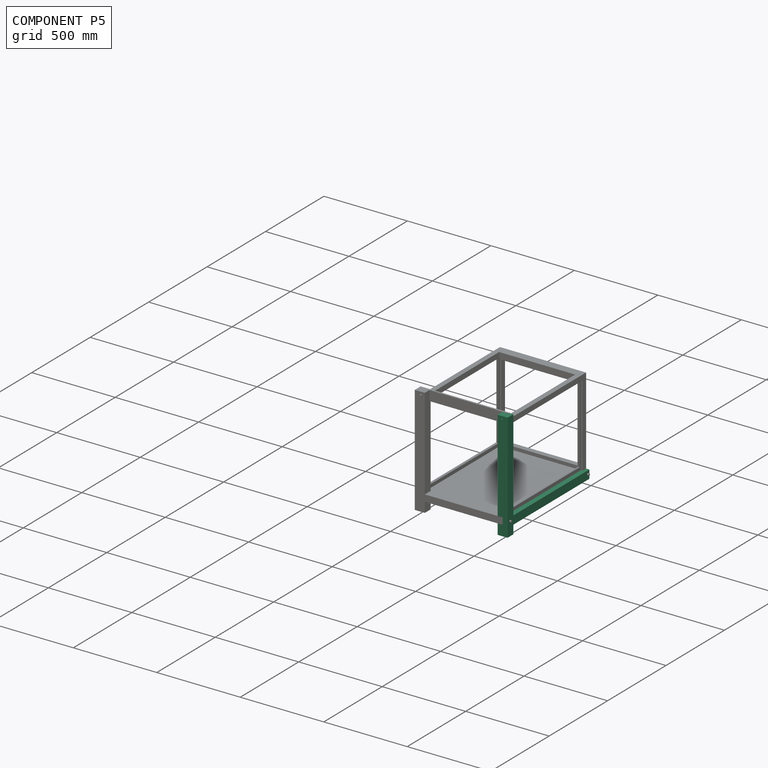
[diagram: component P5 — assembled]
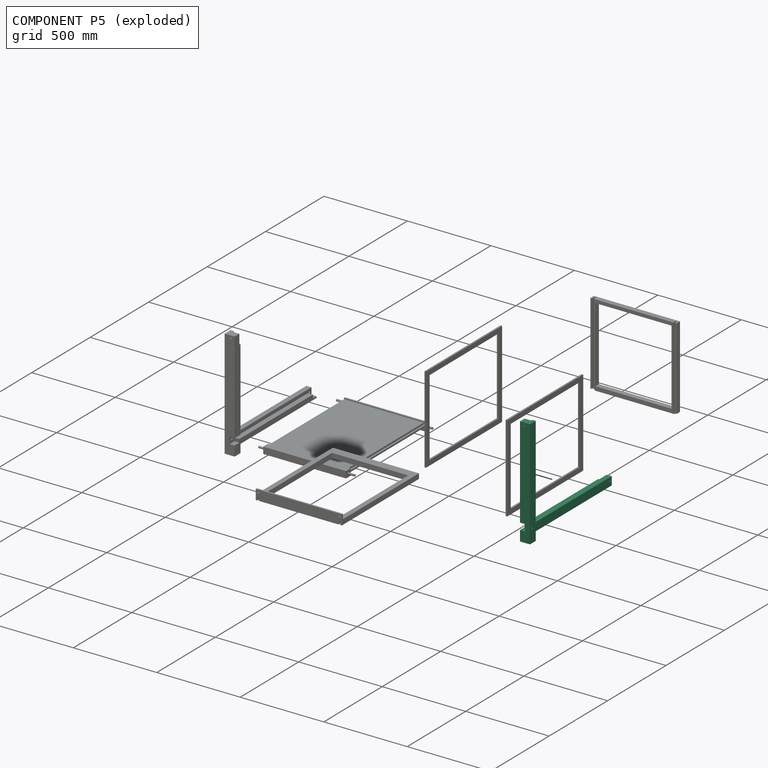
[diagram: component P5 — exploded]
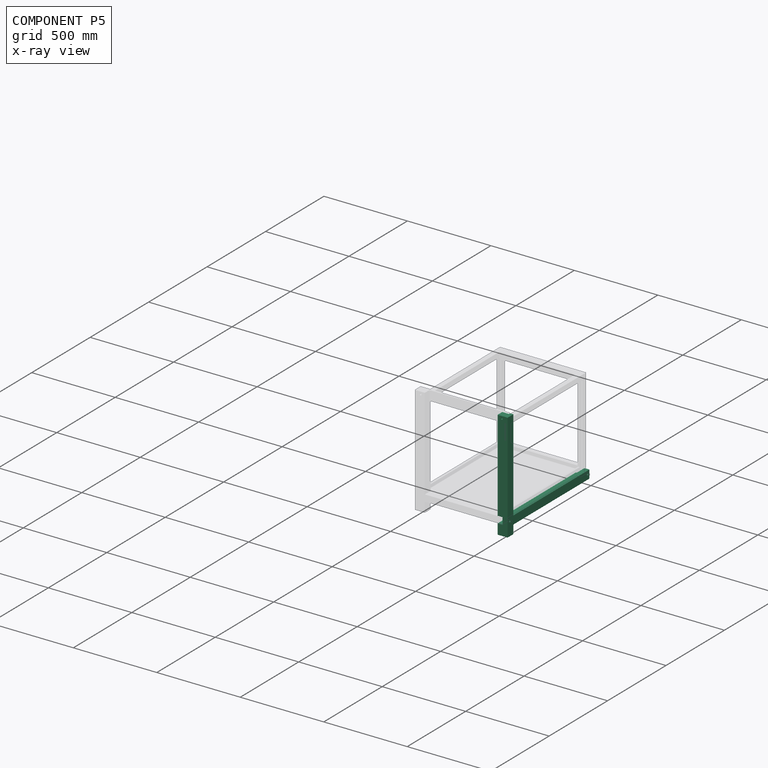
[diagram: component P5 — x-ray view]
COMPONENT P5 — recipe-attached (CADFS 00972112, mesh-verified: the recipe's output STEP matches this component's geometry to below the mesh-comparison resolution (tessellation chordal tolerance ~1.44 mm)).
Held by: PLANAR mate "Planar 2" to P6; CYLINDRICAL mate "Cylindrical 2" to P6; PLANAR mate "Planar 5" to P1; PLANAR mate "Planar 3" to P1; PLANAR mate "Planar 12" to P2.
Construction recipe (FeatureScript — the CAD program that rebuilds this solid; sketch coordinates are in the units given by the * unit suffixes, e.g. mm):

FeatureScript 1511;
import(path : "onshape/std/geometry.fs", version : "1511.0");
import(path : "onshape/std/common.fs", version : "1511.0");
const mm = millimeter;
const VERTEX = EntityType.VERTEX;
const EDGE = EntityType.EDGE;
const FACE = EntityType.FACE;
const BODY = EntityType.BODY;
function v(x, y){return vector(x, y);}
function OD(order){return orderDisambiguation(order);}
function OSD(set){return originalSetDisambiguation(set);}
function TD(topology){return topologyDisambiguation(topology);}
function TDD(query){return trueDependencyDisambiguation(query);}
function sQuery(a, b, c) {return sketchEntityQuery(a, b, c);}

annotation { "Feature Type Name" : "Feature", "Feature Type Description" : "" }
export const myFeature = defineFeature(function(context is Context, id is Id, definition is map)
    precondition{}
    {
        {
            var Q0;
            Q0=qCreatedBy(makeId("Right.planeOp"),FACE);
            var sketch = newSketch(context, id + "F0", { "sketchPlane" : qUnion([Q0])});
            skLineSegment(sketch, "E0.bottom", {"start": v(-299.4, -86.85) * mm, "end": v(350.6, -86.85) * mm});
            skLineSegment(sketch, "E0.top", {"start": v(-299.4, -36.85) * mm, "end": v(350.6, -36.85) * mm});
            skLineSegment(sketch, "E0.left", {"start": v(-349.4, -86.85) * mm, "end": v(-349.4, -36.85) * mm});
            skLineSegment(sketch, "E0.right", {"start": v(350.6, -86.85) * mm, "end": v(350.6, -36.85) * mm});
            skLineSegment(sketch, "E1", {"start": v(0.6, 119.74) * mm, "end": v(0.6, -301.99) * mm, "construction": true});
            skLineSegment(sketch, "E2.top", {"start": v(-349.4, 513.15) * mm, "end": v(-299.4, 513.15) * mm});
            skLineSegment(sketch, "E2.left", {"start": v(-349.4, -36.85) * mm, "end": v(-349.4, 513.15) * mm});
            skLineSegment(sketch, "E2.right", {"start": v(-299.4, -36.85) * mm, "end": v(-299.4, 513.15) * mm});
            skLineSegment(sketch, "E3.top", {"start": v(-349.4, -136.85) * mm, "end": v(-299.4, -136.85) * mm});
            skLineSegment(sketch, "E3.left", {"start": v(-349.4, -86.85) * mm, "end": v(-349.4, -136.85) * mm});
            skLineSegment(sketch, "E3.right", {"start": v(-299.4, -86.85) * mm, "end": v(-299.4, -136.85) * mm});
            skSolve(sketch);
        }
        {
            var Q0;
            Q0 = qSketchRegion(id + "F0", true);
            extrude(context, id + "F1", {"entities" : qUnion([Q0]), "depth" : 60 * mm, "offsetDistance" : 25 * mm});
        }
        {
            var Q0;
            Q0=makeQuery(id+"F1.opExtrude","CAP_FACE",FACE,{"disambiguationData":[OSD([sQuery(id+"F0.wireOp",EDGE,"E0.bottom"),sQuery(id+"F0.wireOp",EDGE,"E0.top"),sQuery(id+"F0.wireOp",EDGE,"E0.left"),sQuery(id+"F0.wireOp",EDGE,"E0.right"),sQuery(id+"F0.wireOp",EDGE,"E2.top"),sQuery(id+"F0.wireOp",EDGE,"E2.left"),sQuery(id+"F0.wireOp",EDGE,"E2.right"),sQuery(id+"F0.wireOp",EDGE,"E3.top"),sQuery(id+"F0.wireOp",EDGE,"E3.left"),sQuery(id+"F0.wireOp",EDGE,"E3.right")])],"isStart":false});
            var sketch = newSketch(context, id + "F2", { "sketchPlane" : qUnion([Q0])});
            skPoint(sketch, "E4.firstSnap0", {"position": v(-324.4, -136.85) * mm});
            skLineSegment(sketch, "E5.bottom", {"start": v(-349.4, -36.85) * mm, "end": v(-309.4, -36.85) * mm});
            skLineSegment(sketch, "E5.top", {"start": v(-349.4, -76.85) * mm, "end": v(-309.4, -76.85) * mm});
            skLineSegment(sketch, "E5.left", {"start": v(-349.4, -36.85) * mm, "end": v(-349.4, -76.85) * mm});
            skLineSegment(sketch, "E5.right", {"start": v(-309.4, -56.85) * mm, "end": v(-309.4, -76.85) * mm});
            skLineSegment(sketch, "E6", {"start": v(-309.4, -36.85) * mm, "end": v(350.6, -36.85) * mm});
            skLineSegment(sketch, "E7", {"start": v(350.6, -36.85) * mm, "end": v(350.6, -76.85) * mm});
            skLineSegment(sketch, "E8", {"start": v(350.6, -76.85) * mm, "end": v(320.6, -76.85) * mm});
            skLineSegment(sketch, "E9", {"start": v(320.6, -76.85) * mm, "end": v(320.6, -56.85) * mm});
            skLineSegment(sketch, "E10", {"start": v(320.6, -56.85) * mm, "end": v(-309.4, -56.85) * mm});
            skPoint(sketch, "E10.endSnap0", {"position": v(-309.4, -56.85) * mm});
            skSolve(sketch);
        }
        {
            var Q0;
            Q0 = qSketchRegion(id + "F2", true);
            extrude(context, id + "F3", {"entities" : qUnion([Q0]), "operationType" : NewBodyOperationType.REMOVE, "oppositeDirection" : true, "depth" : 30 * mm, "offsetDistance" : 25 * mm});
        }
        {
            var Q0;
            Q0=makeQuery(id+"F3.boolean.opBoolean","COPY",FACE,{"derivedFrom":makeQuery(id+"F3.opExtrude","CAP_FACE",FACE,{"disambiguationData":[OSD([sQuery(id+"F2.wireOp",EDGE,"E5.bottom"),sQuery(id+"F2.wireOp",EDGE,"E5.top"),sQuery(id+"F2.wireOp",EDGE,"E5.left"),sQuery(id+"F2.wireOp",EDGE,"E5.right"),sQuery(id+"F2.wireOp",EDGE,"E6"),sQuery(id+"F2.wireOp",EDGE,"E7"),sQuery(id+"F2.wireOp",EDGE,"E8"),sQuery(id+"F2.wireOp",EDGE,"E9"),sQuery(id+"F2.wireOp",EDGE,"E10")])],"isStart":false})});
            var sketch = newSketch(context, id + "F4", { "sketchPlane" : qUnion([Q0])});
            skPoint(sketch, "E11", {"position": v(-329.4, -56.85) * mm});
            skPoint(sketch, "E12", {"position": v(335.6, -56.85) * mm});
            skPoint(sketch, "E12.positionSnap0", {"position": v(350.6, -56.85) * mm});
            skSolve(sketch);
        }
        {
            var Q0;
            Q0=sQuery(id+"F4.wireOp",VERTEX,"E11");
            var Q1;
            Q1=sQuery(id+"F4.wireOp",VERTEX,"E12");
            var Q2;
            Q2=makeQuery(id+"F1.opExtrude","SWEPT_BODY",BODY,{"disambiguationData":[OSD([sQuery(id+"F0.wireOp",EDGE,"E0.bottom"),sQuery(id+"F0.wireOp",EDGE,"E0.top"),sQuery(id+"F0.wireOp",EDGE,"E0.left"),sQuery(id+"F0.wireOp",EDGE,"E0.right"),sQuery(id+"F0.wireOp",EDGE,"E2.top"),sQuery(id+"F0.wireOp",EDGE,"E2.left"),sQuery(id+"F0.wireOp",EDGE,"E2.right"),sQuery(id+"F0.wireOp",EDGE,"E3.top"),sQuery(id+"F0.wireOp",EDGE,"E3.left"),sQuery(id+"F0.wireOp",EDGE,"E3.right")])]});
            hole(context, id + "F5", {"style" : HoleStyle.SIMPLE, "endStyle" : HoleEndStyle.THROUGH, "holeDiameter" : 12 * mm, "majorDiameter" : 5 * mm, "isTappedThrough" : true, "tappedDepth" : 12 * mm, "tapClearance" : 3, "locations" : qUnion([Q0, Q1]), "scope" : qUnion([Q2])});
        }
        {
            var Q0;
            Q0=makeQuery(id+"F1.opExtrude","SWEPT_FACE",FACE,{"disambiguationData":[OSD([sQuery(id+"F0.wireOp",EDGE,"E2.right")])]});
            var sketch = newSketch(context, id + "F6", { "sketchPlane" : qUnion([Q0])});
            skLineSegment(sketch, "E13", {"start": v(-30, -36.85) * mm, "end": v(-30, 453.15) * mm});
            skLineSegment(sketch, "E14", {"start": v(-40, 453.15) * mm, "end": v(-40, -36.85) * mm});
            skLineSegment(sketch, "E15", {"start": v(-40, -36.85) * mm, "end": v(-30, -36.85) * mm});
            skLineSegment(sketch, "E16", {"start": v(-60, 463.15) * mm, "end": v(-60, 453.15) * mm});
            skLineSegment(sketch, "E17", {"start": v(-60, 453.15) * mm, "end": v(-40, 453.15) * mm});
            skLineSegment(sketch, "E18", {"start": v(-60, 513.15) * mm, "end": v(-60, 463.15) * mm});
            skLineSegment(sketch, "E19", {"start": v(-60, 513.15) * mm, "end": v(-20, 513.15) * mm});
            skLineSegment(sketch, "E20", {"start": v(-20, 513.15) * mm, "end": v(-20, 453.15) * mm});
            skLineSegment(sketch, "E21", {"start": v(-30, 453.15) * mm, "end": v(-20, 453.15) * mm});
            skSolve(sketch);
        }
        {
            var Q0;
            Q0=makeQuery(id+"F6.imprint","IMPRINT",FACE,{"disambiguationData":[TD([[makeQuery(id+"F6.imprint","IMPRINT",EDGE,{"derivedFrom":sQuery(id+"F6.wireOp",EDGE,"E13")}),1.0]])]});
            extrude(context, id + "F7", {"entities" : qUnion([Q0]), "operationType" : NewBodyOperationType.REMOVE, "oppositeDirection" : true, "depth" : 10 * mm, "offsetDistance" : 25 * mm});
        }
        {
            var Q0;
            Q0=makeQuery(id+"F7.boolean.opBoolean","COPY",FACE,{"derivedFrom":makeQuery(id+"F7.opExtrude","CAP_FACE",FACE,{"disambiguationData":[OSD([sQuery(id+"F6.wireOp",EDGE,"E13"),sQuery(id+"F6.wireOp",EDGE,"E14"),sQuery(id+"F6.wireOp",EDGE,"E15"),sQuery(id+"F6.wireOp",EDGE,"E16"),sQuery(id+"F6.wireOp",EDGE,"E17"),sQuery(id+"F6.wireOp",EDGE,"E18"),sQuery(id+"F6.wireOp",EDGE,"E19"),sQuery(id+"F6.wireOp",EDGE,"E20"),sQuery(id+"F6.wireOp",EDGE,"E21")])],"isStart":false})});
            var sketch = newSketch(context, id + "F8", { "sketchPlane" : qUnion([Q0])});
            skPoint(sketch, "E22", {"position": v(-35, 498.15) * mm});
            skPoint(sketch, "E22.positionSnap0", {"position": v(-40, 513.15) * mm});
            skPoint(sketch, "E22.positionSnap1", {"position": v(-60, 498.15) * mm});
            skSolve(sketch);
        }
        {
            var Q0;
            Q0=sQuery(id+"F8.wireOp",VERTEX,"E22");
            var Q1;
            Q1=makeQuery(id+"F1.opExtrude","SWEPT_BODY",BODY,{"disambiguationData":[OSD([sQuery(id+"F0.wireOp",EDGE,"E0.bottom"),sQuery(id+"F0.wireOp",EDGE,"E0.top"),sQuery(id+"F0.wireOp",EDGE,"E0.left"),sQuery(id+"F0.wireOp",EDGE,"E0.right"),sQuery(id+"F0.wireOp",EDGE,"E2.top"),sQuery(id+"F0.wireOp",EDGE,"E2.left"),sQuery(id+"F0.wireOp",EDGE,"E2.right"),sQuery(id+"F0.wireOp",EDGE,"E3.top"),sQuery(id+"F0.wireOp",EDGE,"E3.left"),sQuery(id+"F0.wireOp",EDGE,"E3.right")])]});
            hole(context, id + "F9", {"style" : HoleStyle.SIMPLE, "endStyle" : HoleEndStyle.THROUGH, "holeDiameter" : 10 * mm, "majorDiameter" : 5 * mm, "isTappedThrough" : true, "tappedDepth" : 12 * mm, "tapClearance" : 3, "locations" : qUnion([Q0]), "scope" : qUnion([Q1])});
        }
    });
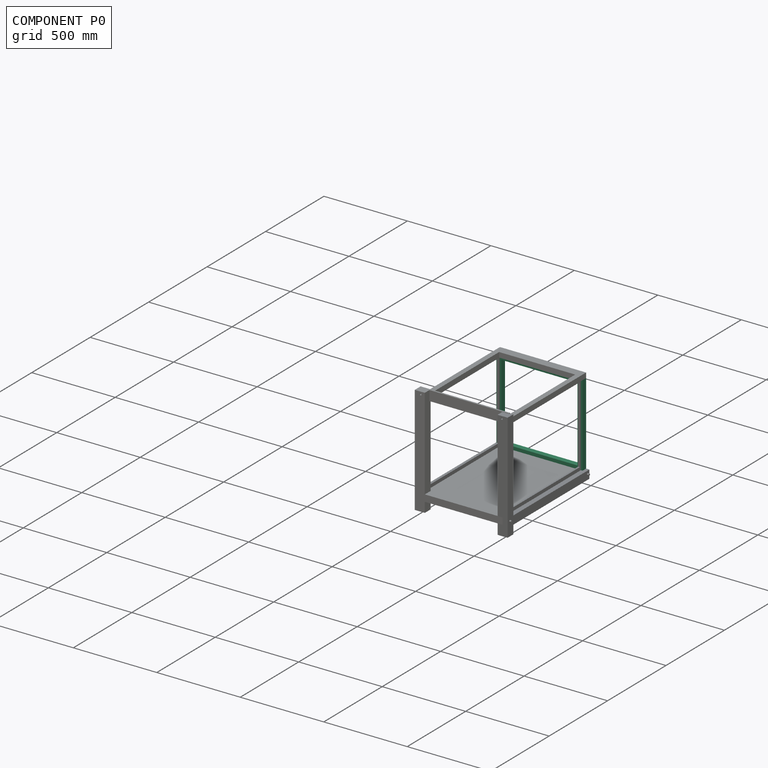
[diagram: component P0 — assembled]
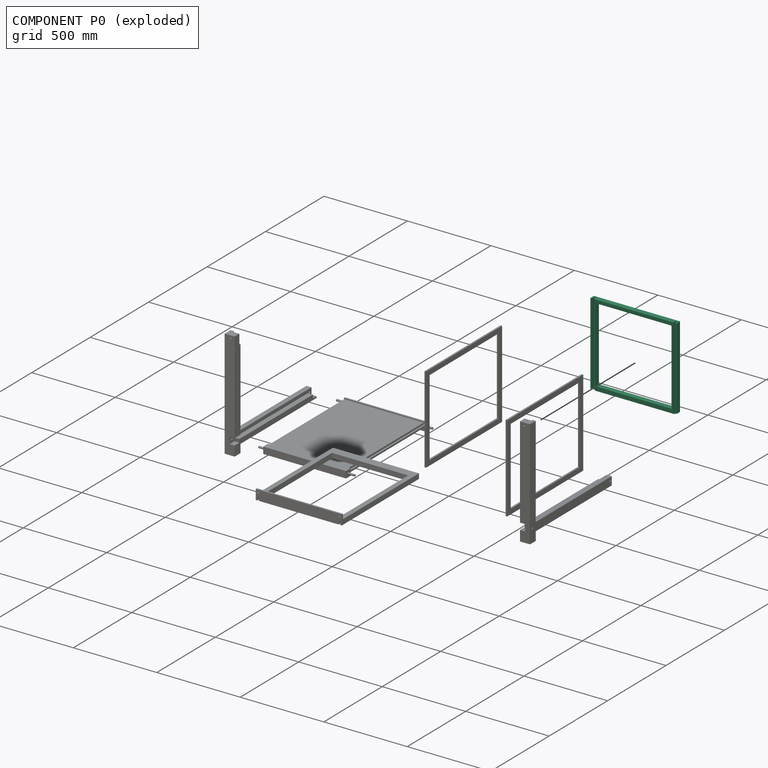
[diagram: component P0 — exploded]
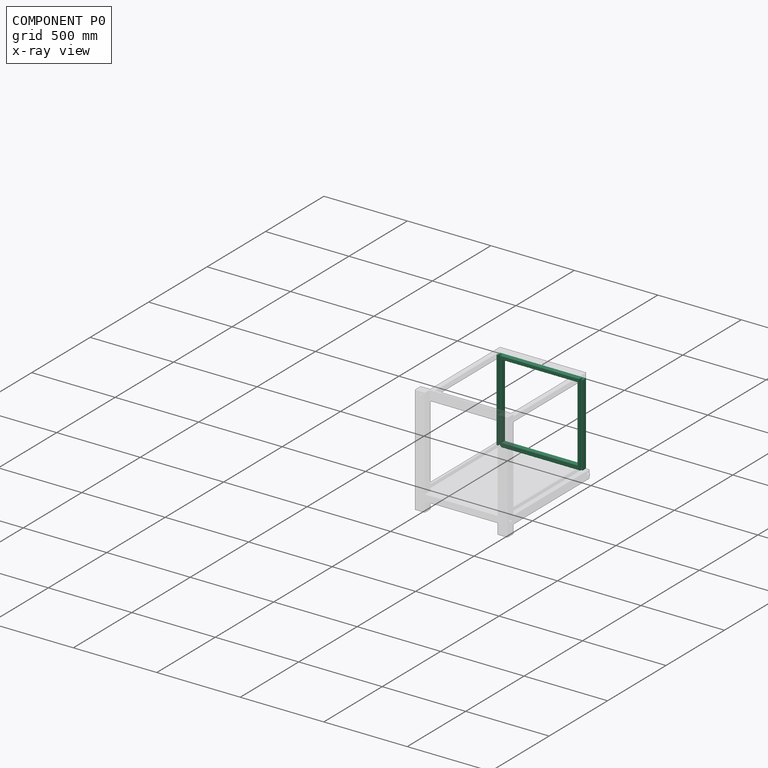
[diagram: component P0 — x-ray view]
COMPONENT P0 — recipe-attached (CADFS 00972115, mesh-verified: the recipe's output STEP matches this component's geometry to below the mesh-comparison resolution (tessellation chordal tolerance ~1.08 mm)).
Held by: PLANAR mate "Planar 11" to P1; PLANAR mate "Planar 13" to P2; PLANAR mate "Planar 10" to P3; PLANAR mate "Planar 9" to P6.
Construction recipe (FeatureScript — the CAD program that rebuilds this solid; sketch coordinates are in the units given by the * unit suffixes, e.g. mm):

FeatureScript 1511;
import(path : "onshape/std/geometry.fs", version : "1511.0");
import(path : "onshape/std/common.fs", version : "1511.0");
const mm = millimeter;
const VERTEX = EntityType.VERTEX;
const EDGE = EntityType.EDGE;
const FACE = EntityType.FACE;
const BODY = EntityType.BODY;
function v(x, y){return vector(x, y);}
function OD(order){return orderDisambiguation(order);}
function OSD(set){return originalSetDisambiguation(set);}
function TD(topology){return topologyDisambiguation(topology);}
function TDD(query){return trueDependencyDisambiguation(query);}
function sQuery(a, b, c) {return sketchEntityQuery(a, b, c);}

annotation { "Feature Type Name" : "Feature", "Feature Type Description" : "" }
export const myFeature = defineFeature(function(context is Context, id is Id, definition is map)
    precondition{}
    {
        {
            var Q0;
            Q0=qCreatedBy(makeId("Front.planeOp"),FACE);
            var sketch = newSketch(context, id + "F0", { "sketchPlane" : qUnion([Q0])});
            skLineSegment(sketch, "E0.bottom", {"start": v(-276.65, 302.68) * mm, "end": v(259.35, 302.68) * mm});
            skLineSegment(sketch, "E0.top", {"start": v(-276.65, -197.32) * mm, "end": v(259.35, -197.32) * mm});
            skLineSegment(sketch, "E0.left", {"start": v(-276.65, 302.68) * mm, "end": v(-276.65, -197.32) * mm});
            skLineSegment(sketch, "E0.right", {"start": v(259.35, 302.68) * mm, "end": v(259.35, -197.32) * mm});
            skLineSegment(sketch, "E1.bottom", {"start": v(-236.65, -167.32) * mm, "end": v(219.35, -167.32) * mm});
            skLineSegment(sketch, "E1.top", {"start": v(-236.65, 282.68) * mm, "end": v(219.35, 282.68) * mm});
            skLineSegment(sketch, "E1.left", {"start": v(-236.65, -167.32) * mm, "end": v(-236.65, 282.68) * mm});
            skLineSegment(sketch, "E1.right", {"start": v(219.35, -167.32) * mm, "end": v(219.35, 282.68) * mm});
            skSolve(sketch);
        }
        {
            var Q0;
            Q0 = qSketchRegion(id + "F0", true);
            extrude(context, id + "F1", {"entities" : qUnion([Q0]), "depth" : 20 * mm, "offsetDistance" : 25 * mm});
        }
        {
            var Q0;
            Q0=makeQuery(id+"F1.opExtrude","SWEPT_FACE",FACE,{"disambiguationData":[OSD([sQuery(id+"F0.wireOp",EDGE,"E0.left")])]});
            var sketch = newSketch(context, id + "F2", { "sketchPlane" : qUnion([Q0])});
            skLineSegment(sketch, "E2.bottom", {"start": v(20, -197.32) * mm, "end": v(10, -197.32) * mm});
            skLineSegment(sketch, "E2.top", {"start": v(20, -187.32) * mm, "end": v(10, -187.32) * mm});
            skLineSegment(sketch, "E2.left", {"start": v(20, -197.32) * mm, "end": v(20, -187.32) * mm});
            skLineSegment(sketch, "E2.right", {"start": v(10, -197.32) * mm, "end": v(10, -187.32) * mm});
            skSolve(sketch);
        }
        {
            var Q0;
            Q0 = qSketchRegion(id + "F2", true);
            extrude(context, id + "F3", {"entities" : qUnion([Q0]), "operationType" : NewBodyOperationType.REMOVE, "endBound" : BoundingType.UP_TO_NEXT, "oppositeDirection" : true, "depth" : 25 * mm, "offsetDistance" : 25 * mm});
        }
        {
            var Q0;
            Q0=makeQuery(id+"F1.opExtrude","CAP_FACE",FACE,{"disambiguationData":[OSD([sQuery(id+"F0.wireOp",EDGE,"E0.bottom"),sQuery(id+"F0.wireOp",EDGE,"E0.top"),sQuery(id+"F0.wireOp",EDGE,"E0.left"),sQuery(id+"F0.wireOp",EDGE,"E0.right"),sQuery(id+"F0.wireOp",EDGE,"E1.bottom"),sQuery(id+"F0.wireOp",EDGE,"E1.top"),sQuery(id+"F0.wireOp",EDGE,"E1.left"),sQuery(id+"F0.wireOp",EDGE,"E1.right")])],"isStart":true});
            var sketch = newSketch(context, id + "F4", { "sketchPlane" : qUnion([Q0])});
            skLineSegment(sketch, "E3.bottom", {"start": v(246.65, 302.68) * mm, "end": v(256.65, 302.68) * mm});
            skLineSegment(sketch, "E3.top", {"start": v(246.65, -197.32) * mm, "end": v(256.65, -197.32) * mm});
            skLineSegment(sketch, "E3.left", {"start": v(246.65, 302.68) * mm, "end": v(246.65, -197.32) * mm});
            skLineSegment(sketch, "E3.right", {"start": v(256.65, 302.68) * mm, "end": v(256.65, -197.32) * mm});
            skLineSegment(sketch, "E4.bottom", {"start": v(-239.35, -197.32) * mm, "end": v(-229.35, -197.32) * mm});
            skLineSegment(sketch, "E4.top", {"start": v(-239.35, 302.68) * mm, "end": v(-229.35, 302.68) * mm});
            skLineSegment(sketch, "E4.left", {"start": v(-239.35, -197.32) * mm, "end": v(-239.35, 302.68) * mm});
            skLineSegment(sketch, "E4.right", {"start": v(-229.35, -197.32) * mm, "end": v(-229.35, 302.68) * mm});
            skSolve(sketch);
        }
        {
            var Q0;
            Q0 = qSketchRegion(id + "F4", true);
            extrude(context, id + "F5", {"entities" : qUnion([Q0]), "operationType" : NewBodyOperationType.REMOVE, "oppositeDirection" : true, "depth" : 10 * mm, "offsetDistance" : 25 * mm});
        }
        {
            var Q0;
            Q0=makeQuery(id+"F1.opExtrude","SWEPT_FACE",FACE,{"disambiguationData":[OSD([sQuery(id+"F0.wireOp",EDGE,"E0.right")])]});
            var sketch = newSketch(context, id + "F6", { "sketchPlane" : qUnion([Q0])});
            skLineSegment(sketch, "E5.bottom", {"start": v(-10, -197.32) * mm, "end": v(-10, -197.32) * mm});
            skPoint(sketch, "E6.oppositeSnap0", {"position": v(-15, -187.32) * mm});
            skLineSegment(sketch, "E6.bottom", {"start": v(-10, -197.32) * mm, "end": v(0, -197.32) * mm});
            skLineSegment(sketch, "E6.top", {"start": v(-10, -187.32) * mm, "end": v(0, -187.32) * mm});
            skLineSegment(sketch, "E6.left", {"start": v(-10, -197.32) * mm, "end": v(-10, -187.32) * mm});
            skLineSegment(sketch, "E6.right", {"start": v(0, -197.32) * mm, "end": v(0, -187.32) * mm});
            skSolve(sketch);
        }
        {
            var Q0;
            Q0=makeQuery(id+"F6.imprint","IMPRINT",FACE,{"disambiguationData":[TD([[makeQuery(id+"F6.imprint","IMPRINT",EDGE,{"derivedFrom":sQuery(id+"F6.wireOp",EDGE,"E6.bottom")}),1.0]])]});
            extrude(context, id + "F7", {"entities" : qUnion([Q0]), "operationType" : NewBodyOperationType.REMOVE, "endBound" : BoundingType.UP_TO_NEXT, "oppositeDirection" : true, "depth" : 25 * mm, "offsetDistance" : 25 * mm});
        }
        {
            var Q0;
            Q0=makeQuery(id+"F1.opExtrude","SWEPT_FACE",FACE,{"disambiguationData":[OSD([sQuery(id+"F0.wireOp",EDGE,"E0.left")])]});
            var sketch = newSketch(context, id + "F8", { "sketchPlane" : qUnion([Q0])});
            skLineSegment(sketch, "E7.bottom", {"start": v(10, -197.32) * mm, "end": v(0, -197.32) * mm});
            skLineSegment(sketch, "E7.top", {"start": v(10, -187.32) * mm, "end": v(0, -187.32) * mm});
            skLineSegment(sketch, "E7.left", {"start": v(10, -197.32) * mm, "end": v(10, -187.32) * mm});
            skLineSegment(sketch, "E7.right", {"start": v(0, -197.32) * mm, "end": v(0, -187.32) * mm});
            skSolve(sketch);
        }
        {
            var Q0;
            Q0=makeQuery(id+"F8.imprint","IMPRINT",FACE,{"disambiguationData":[TD([[makeQuery(id+"F8.imprint","IMPRINT",EDGE,{"derivedFrom":sQuery(id+"F8.wireOp",EDGE,"E7.bottom")}),-1.0]])]});
            extrude(context, id + "F9", {"entities" : qUnion([Q0]), "operationType" : NewBodyOperationType.REMOVE, "endBound" : BoundingType.UP_TO_NEXT, "oppositeDirection" : true, "depth" : 25 * mm, "offsetDistance" : 25 * mm});
        }
        {
            var Q0;
            Q0=makeQuery(id+"F1.opExtrude","SWEPT_FACE",FACE,{"disambiguationData":[OSD([sQuery(id+"F0.wireOp",EDGE,"E0.bottom")])]});
            var sketch = newSketch(context, id + "F10", { "sketchPlane" : qUnion([Q0])});
            skLineSegment(sketch, "E8.bottom", {"start": v(259.35, 0) * mm, "end": v(249.35, 0) * mm});
            skLineSegment(sketch, "E8.top", {"start": v(259.35, -20) * mm, "end": v(249.35, -20) * mm});
            skLineSegment(sketch, "E8.left", {"start": v(259.35, 0) * mm, "end": v(259.35, -20) * mm});
            skLineSegment(sketch, "E8.right", {"start": v(249.35, 0) * mm, "end": v(249.35, -20) * mm});
            skLineSegment(sketch, "E9.bottom", {"start": v(-276.65, 0) * mm, "end": v(-266.65, 0) * mm});
            skLineSegment(sketch, "E9.top", {"start": v(-276.65, -20) * mm, "end": v(-266.65, -20) * mm});
            skLineSegment(sketch, "E9.left", {"start": v(-276.65, 0) * mm, "end": v(-276.65, -20) * mm});
            skLineSegment(sketch, "E9.right", {"start": v(-266.65, 0) * mm, "end": v(-266.65, -20) * mm});
            skSolve(sketch);
        }
        {
            var Q0;
            Q0=makeQuery(id+"F10.imprint","IMPRINT",FACE,{"disambiguationData":[TD([[makeQuery(id+"F10.imprint","IMPRINT",EDGE,{"derivedFrom":sQuery(id+"F10.wireOp",EDGE,"E9.bottom")}),-1.0]])]});
            var Q1;
            Q1=makeQuery(id+"F10.imprint","IMPRINT",FACE,{"disambiguationData":[TD([[makeQuery(id+"F10.imprint","IMPRINT",EDGE,{"derivedFrom":sQuery(id+"F10.wireOp",EDGE,"E8.bottom")}),-1.0]])]});
            extrude(context, id + "F11", {"entities" : qUnion([Q0, Q1]), "operationType" : NewBodyOperationType.REMOVE, "endBound" : BoundingType.UP_TO_NEXT, "oppositeDirection" : true, "depth" : 25 * mm, "offsetDistance" : 25 * mm});
        }
        {
            var Q0;
            {var subQ0=sQuery(id+"F0.wireOp",EDGE,"E1.top");var subQ1=sQuery(id+"F0.wireOp",EDGE,"E1.bottom");var subQ2=sQuery(id+"F0.wireOp",EDGE,"E0.top");var subQ3=sQuery(id+"F0.wireOp",EDGE,"E0.bottom");var subQ4=sQuery(id+"F0.wireOp",EDGE,"E1.left");var subQ5=sQuery(id+"F0.wireOp",EDGE,"E1.right");Q0=makeQuery(id+"F5.boolean.opBoolean","SPLIT",FACE,{"disambiguationData":[TD([makeQuery(id+"F1.opExtrude","SWEPT_FACE",FACE,{"disambiguationData":[OSD([subQ1])]})])],"derivedFrom":makeQuery(id+"F1.opExtrude","CAP_FACE",FACE,{"disambiguationData":[OSD([subQ3,subQ2,sQuery(id+"F0.wireOp",EDGE,"E0.left"),sQuery(id+"F0.wireOp",EDGE,"E0.right"),subQ1,subQ0,subQ4,subQ5])],"isStart":true})});}
            var Q1;
            {var subQ0=sQuery(id+"F0.wireOp",EDGE,"E0.bottom");var subQ1=sQuery(id+"F0.wireOp",EDGE,"E0.right");var subQ2=sQuery(id+"F0.wireOp",EDGE,"E0.top");Q1=makeQuery(id+"F5.boolean.opBoolean","SPLIT",FACE,{"disambiguationData":[TD([makeQuery(id+"F1.opExtrude","SWEPT_FACE",FACE,{"disambiguationData":[OSD([subQ1])]})])],"derivedFrom":makeQuery(id+"F1.opExtrude","CAP_FACE",FACE,{"disambiguationData":[OSD([subQ0,subQ2,sQuery(id+"F0.wireOp",EDGE,"E0.left"),subQ1,sQuery(id+"F0.wireOp",EDGE,"E1.bottom"),sQuery(id+"F0.wireOp",EDGE,"E1.top"),sQuery(id+"F0.wireOp",EDGE,"E1.left"),sQuery(id+"F0.wireOp",EDGE,"E1.right")])],"isStart":true})});}
            var Q2;
            {var subQ0=sQuery(id+"F0.wireOp",EDGE,"E0.bottom");var subQ1=sQuery(id+"F0.wireOp",EDGE,"E0.top");var subQ2=sQuery(id+"F0.wireOp",EDGE,"E0.left");Q2=makeQuery(id+"F5.boolean.opBoolean","SPLIT",FACE,{"disambiguationData":[TD([makeQuery(id+"F1.opExtrude","SWEPT_FACE",FACE,{"disambiguationData":[OSD([subQ2])]})])],"derivedFrom":makeQuery(id+"F1.opExtrude","CAP_FACE",FACE,{"disambiguationData":[OSD([subQ0,subQ1,subQ2,sQuery(id+"F0.wireOp",EDGE,"E0.right"),sQuery(id+"F0.wireOp",EDGE,"E1.bottom"),sQuery(id+"F0.wireOp",EDGE,"E1.top"),sQuery(id+"F0.wireOp",EDGE,"E1.left"),sQuery(id+"F0.wireOp",EDGE,"E1.right")])],"isStart":true})});}
            extrude(context, id + "F12", {"entities" : qUnion([Q0, Q1, Q2]), "operationType" : NewBodyOperationType.ADD, "depth" : 10 * mm, "offsetDistance" : 25 * mm});
        }
        {
            var Q0;
            {var subQ0=sQuery(id+"F4.wireOp",EDGE,"E4.right");Q0=makeQuery(id+"F12.boolean.opBoolean","MERGE",FACE,{"derivedFrom":[makeQuery(id+"F5.boolean.opBoolean","COPY",FACE,{"derivedFrom":makeQuery(id+"F5.opExtrude","SWEPT_FACE",FACE,{"disambiguationData":[OSD([subQ0])]})}),makeQuery(id+"F12.opExtrude","SWEPT_FACE",FACE,{"disambiguationData":[OSD([subQ0])]})]});}
            var sketch = newSketch(context, id + "F13", { "sketchPlane" : qUnion([Q0])});
            skLineSegment(sketch, "E10.bottom", {"start": v(10, -197.32) * mm, "end": v(0, -197.32) * mm});
            skLineSegment(sketch, "E10.top", {"start": v(10, -187.32) * mm, "end": v(0, -187.32) * mm});
            skLineSegment(sketch, "E10.left", {"start": v(10, -197.32) * mm, "end": v(10, -187.32) * mm});
            skLineSegment(sketch, "E10.right", {"start": v(0, -197.32) * mm, "end": v(0, -187.32) * mm});
            skSolve(sketch);
        }
        {
            var Q0;
            Q0=makeQuery(id+"F13.imprint","IMPRINT",FACE,{"disambiguationData":[TD([[makeQuery(id+"F13.imprint","IMPRINT",EDGE,{"derivedFrom":sQuery(id+"F13.wireOp",EDGE,"E10.bottom")}),1.0]])]});
            extrude(context, id + "F14", {"entities" : qUnion([Q0]), "operationType" : NewBodyOperationType.REMOVE, "endBound" : BoundingType.UP_TO_NEXT, "oppositeDirection" : true, "depth" : 25 * mm, "offsetDistance" : 25 * mm});
        }
    });
PROVENANCE & LICENSES
Assembly (occurrences, transforms, mates, per-part STEP geometry): AutoMate dataset, Zenodo record 7776208, CC0.
Construction recipes: CADFS (HuggingFace VladPyatov/CADFS, CC-BY-4.0, layered over the ABC dataset), FeatureScript reconstruction programs keyed by ABC model id.
Join: ABC meta listings map ABC model id -> Onshape documentId; within a shared document, parts are matched by geometric signature (bounding-box dims + volume at 0.1% relative tolerance, exact B-rep face/solid counts).
Verification: 6 of this assembly's 7 components carry a recipe attachment, and every attachment is mesh-verified: the CADFS STEP and the AutoMate member STEP were compared as meshes in their shared local frame (symmetric sampled-point-to-mesh distance); worst across the 6 attachments: below the mesh-comparison resolution (tessellation chordal tolerance ~1.44 mm) on a 957 mm part.
Renders: orthographic iso camera (az 35 / el 25); the floor grid conveys scale (grid pitch printed in each image; no ruler). In the exploded view each component is displaced by its stored offset vector: the offsets alone carry the explosion direction (mate normal/axis signs are not orientation cues and do not encode it), and separation distances are assigned per mate-chain, not proportionally to assembly-order depth.
